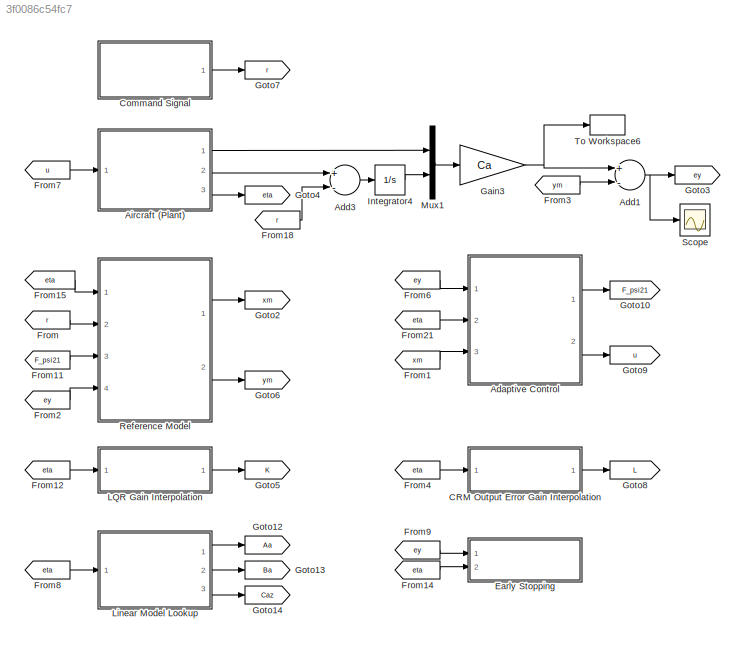
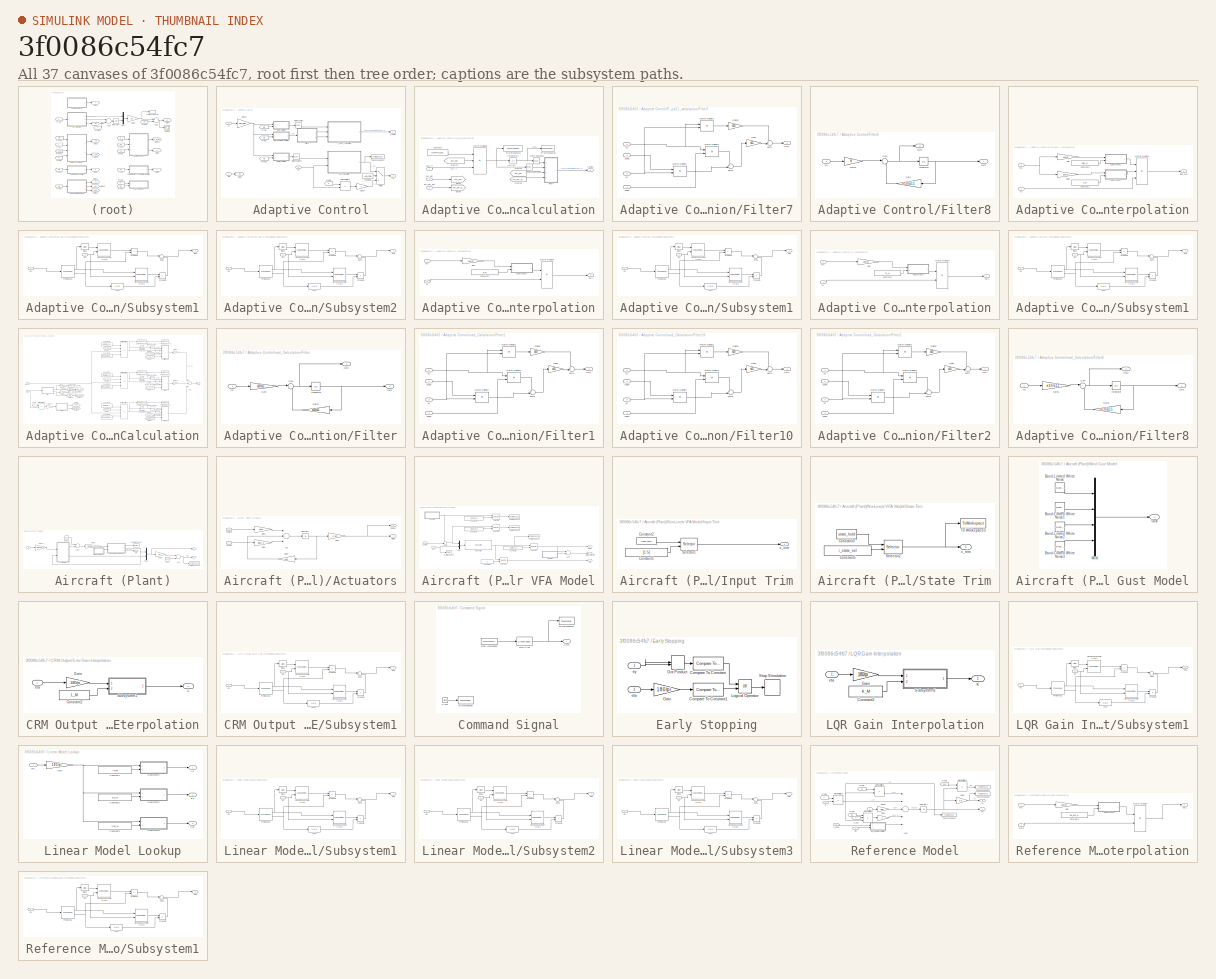
[diagram: thumbnail index - all 37 canvases of the model, root first then tree order]
MODEL slx_3f0086c54fc7
KIND model
CONFIG AbsTol = auto
CONFIG EnableMultiTasking = off
CONFIG FixedStep = 0.001
CONFIG MaxStep = auto
CONFIG MinStep = auto
CONFIG RelTol = 1e-3
CONFIG SampleTimeConstraint = Unconstrained
CONFIG Solver = ode23tb
CONFIG SolverName = ode23tb
CONFIG StartTime = 0.0
CONFIG StopTime = tsim
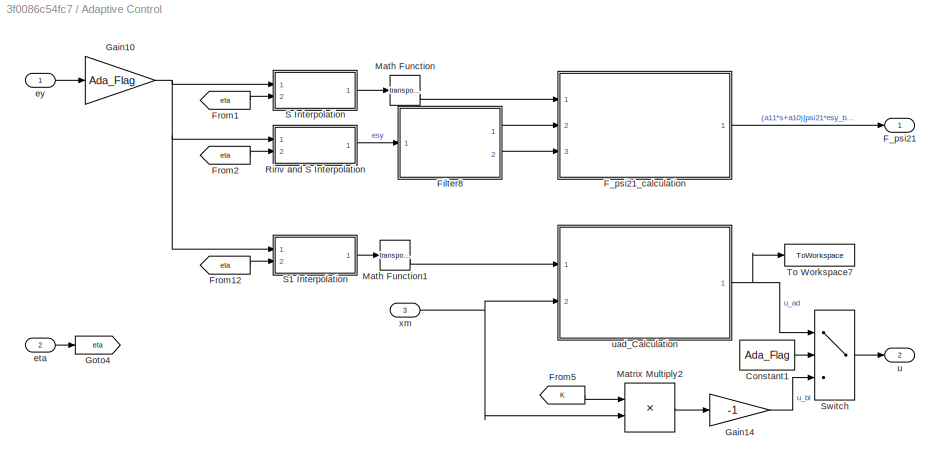
BLOCK [SubSystem] Adaptive Control
  Ports = [3, 2]
  RequestExecContextInheritance = off
  Variant = off
BLOCK [Constant] Adaptive Control/Constant1
  Value = Ada_Flag
  VectorParams1D = off
BLOCK [Outport] Adaptive Control/F_psi21
  IconDisplay = Port number
BLOCK [SubSystem] Adaptive Control/F_psi21_calculation
  Ports = [3, 1]
  RequestExecContextInheritance = off
  Variant = off
BLOCK [Inport] Adaptive Control/F_psi21_calculation/(Sey)^T
  IconDisplay = Port number
BLOCK [Constant] Adaptive Control/F_psi21_calculation/Constant7
  Value = Gamma_p21
  VectorParams1D = off
BLOCK [Outport] Adaptive Control/F_psi21_calculation/F_psi21
  IconDisplay = Port number
BLOCK [SubSystem] Adaptive Control/F_psi21_calculation/Filter7
  Ports = [4, 1]
  RequestExecContextInheritance = off
  Variant = off
BLOCK [Gain] Adaptive Control/F_psi21_calculation/Filter7/Gain1
  Gain = a11
  OutDataTypeStr = Inherit: Inherit via internal rule
  ParamDataTypeStr = Inherit: Inherit via internal rule
  SaturateOnIntegerOverflow = off
BLOCK [Gain] Adaptive Control/F_psi21_calculation/Filter7/Gain25
  Gain = a10
  OutDataTypeStr = Inherit: Inherit via internal rule
  ParamDataTypeStr = Inherit: Inherit via internal rule
  SaturateOnIntegerOverflow = off
BLOCK [Product] Adaptive Control/F_psi21_calculation/Filter7/Matrix Multiply1
  InputSameDT = off
  Multiplication = Matrix(*)
  OutDataTypeStr = Inherit: Inherit via internal rule
  Ports = [2, 1]
  RndMeth = Floor
  SaturateOnIntegerOverflow = off
BLOCK [Product] Adaptive Control/F_psi21_calculation/Filter7/Matrix Multiply2
  InputSameDT = off
  Multiplication = Matrix(*)
  OutDataTypeStr = Inherit: Inherit via internal rule
  Ports = [2, 1]
  RndMeth = Floor
  SaturateOnIntegerOverflow = off
BLOCK [Product] Adaptive Control/F_psi21_calculation/Filter7/Matrix Multiply3
  InputSameDT = off
  Multiplication = Matrix(*)
  OutDataTypeStr = Inherit: Inherit via internal rule
  Ports = [2, 1]
  RndMeth = Floor
  SaturateOnIntegerOverflow = off
BLOCK [Outport] Adaptive Control/F_psi21_calculation/Filter7/Out1
  IconDisplay = Port number
BLOCK [Sum] Adaptive Control/F_psi21_calculation/Filter7/Sum1
  IconShape = round
  InputSameDT = off
  Inputs = ++|
  OutDataTypeStr = Inherit: Inherit via internal rule
  Ports = [2, 1]
  SaturateOnIntegerOverflow = off
BLOCK [Sum] Adaptive Control/F_psi21_calculation/Filter7/Sum6
  IconShape = round
  InputSameDT = off
  Inputs = ++|
  OutDataTypeStr = Inherit: Inherit via internal rule
  Ports = [2, 1]
  SaturateOnIntegerOverflow = off
BLOCK [Inport] Adaptive Control/F_psi21_calculation/Filter7/u1
  IconDisplay = Port number
BLOCK [Inport] Adaptive Control/F_psi21_calculation/Filter7/u1dot
  IconDisplay = Port number
  Port = 2
BLOCK [Inport] Adaptive Control/F_psi21_calculation/Filter7/u2
  IconDisplay = Port number
  Port = 3
BLOCK [Inport] Adaptive Control/F_psi21_calculation/Filter7/u2dot
  IconDisplay = Port number
  Port = 4
BLOCK [From] Adaptive Control/F_psi21_calculation/From23
  GotoTag = esy_bar
BLOCK [From] Adaptive Control/F_psi21_calculation/From24
  GotoTag = esy_bar
BLOCK [From] Adaptive Control/F_psi21_calculation/From25
  GotoTag = esy_bar_dot
BLOCK [Goto] Adaptive Control/F_psi21_calculation/Goto4
  GotoTag = esy_bar
BLOCK [Goto] Adaptive Control/F_psi21_calculation/Goto5
  GotoTag = esy_bar_dot
BLOCK [Integrator] Adaptive Control/F_psi21_calculation/Integrator2
  InitialCondition = psi21_0
  Ports = [1, 1]
BLOCK [Math] Adaptive Control/F_psi21_calculation/Math Function5
  Operator = transpose
  Ports = [1, 1]
BLOCK [Math] Adaptive Control/F_psi21_calculation/Math Function6
  Operator = transpose
  Ports = [1, 1]
BLOCK [Product] Adaptive Control/F_psi21_calculation/Matrix Multiply6
  InputSameDT = off
  Inputs = 3
  Multiplication = Matrix(*)
  OutDataTypeStr = Inherit: Inherit via internal rule
  Ports = [3, 1]
  RndMeth = Floor
  SaturateOnIntegerOverflow = off
BLOCK [ToWorkspace] Adaptive Control/F_psi21_calculation/To Workspace15
  Decimation = data_deci
  MaxDataPoints = inf
  Ports = [1]
  SampleTime = -1
  VariableName = psi21_ada
BLOCK [ToWorkspace] Adaptive Control/F_psi21_calculation/To Workspace16
  Decimation = data_deci
  MaxDataPoints = inf
  Ports = [1]
  SampleTime = -1
  VariableName = psi21_ada_dot
BLOCK [Inport] Adaptive Control/F_psi21_calculation/esy_bar
  IconDisplay = Port number
  Port = 2
BLOCK [Inport] Adaptive Control/F_psi21_calculation/esy_bar_dot
  IconDisplay = Port number
  Port = 3
BLOCK [SubSystem] Adaptive Control/Filter8
  Ports = [1, 2]
  RequestExecContextInheritance = off
  Variant = off
BLOCK [Gain] Adaptive Control/Filter8/Gain
  Gain = a10/a11
  OutDataTypeStr = Inherit: Inherit via internal rule
  ParamDataTypeStr = Inherit: Inherit via internal rule
  SaturateOnIntegerOverflow = off
BLOCK [Gain] Adaptive Control/Filter8/Gain1
  OutDataTypeStr = Inherit: Inherit via internal rule
  ParamDataTypeStr = Inherit: Inherit via internal rule
  SaturateOnIntegerOverflow = off
BLOCK [Inport] Adaptive Control/Filter8/In1
  IconDisplay = Port number
BLOCK [Integrator] Adaptive Control/Filter8/Integrator
  Ports = [1, 1]
BLOCK [Outport] Adaptive Control/Filter8/Out1
  IconDisplay = Port number
BLOCK [Outport] Adaptive Control/Filter8/Out2
  IconDisplay = Port number
  Port = 2
BLOCK [Sum] Adaptive Control/Filter8/Sum
  IconShape = round
  InputSameDT = off
  Inputs = |+-
  OutDataTypeStr = Inherit: Inherit via internal rule
  Ports = [2, 1]
  SaturateOnIntegerOverflow = off
BLOCK [From] Adaptive Control/From1
  GotoTag = eta
BLOCK [From] Adaptive Control/From12
  GotoTag = eta
BLOCK [From] Adaptive Control/From2
  GotoTag = eta
BLOCK [From] Adaptive Control/From5
  GotoTag = K
  TagVisibility = global
BLOCK [Gain] Adaptive Control/Gain10
  Gain = Ada_Flag
  OutDataTypeStr = Inherit: Inherit via internal rule
  ParamDataTypeStr = Inherit: Inherit via internal rule
  SaturateOnIntegerOverflow = off
BLOCK [Gain] Adaptive Control/Gain14
  Gain = -1
  OutDataTypeStr = Inherit: Inherit via internal rule
  ParamDataTypeStr = Inherit: Inherit via internal rule
  SaturateOnIntegerOverflow = off
BLOCK [Goto] Adaptive Control/Goto4
  GotoTag = eta
BLOCK [Math] Adaptive Control/Math Function
  Operator = transpose
  Ports = [1, 1]
BLOCK [Math] Adaptive Control/Math Function1
  Operator = transpose
  Ports = [1, 1]
BLOCK [Product] Adaptive Control/Matrix Multiply2
  InputSameDT = off
  Multiplication = Matrix(*)
  OutDataTypeStr = Inherit: Inherit via internal rule
  Ports = [2, 1]
  RndMeth = Floor
  SaturateOnIntegerOverflow = off
BLOCK [SubSystem] Adaptive Control/Rinv and S Interpolation
  Ports = [2, 1]
  RequestExecContextInheritance = off
  Variant = off
BLOCK [Constant] Adaptive Control/Rinv and S Interpolation/Constant1
  Value = S_M
BLOCK [Constant] Adaptive Control/Rinv and S Interpolation/Constant2
  Value = Rinv_M
BLOCK [Gain] Adaptive Control/Rinv and S Interpolation/Gain
  Gain = 180/pi
  OutDataTypeStr = Inherit: Inherit via internal rule
  ParamDataTypeStr = Inherit: Inherit via internal rule
  SaturateOnIntegerOverflow = off
BLOCK [Gain] Adaptive Control/Rinv and S Interpolation/Gain1
  Gain = 180/pi
  OutDataTypeStr = Inherit: Inherit via internal rule
  ParamDataTypeStr = Inherit: Inherit via internal rule
  SaturateOnIntegerOverflow = off
BLOCK [Product] Adaptive Control/Rinv and S Interpolation/Matrix Multiply6
  InputSameDT = off
  Inputs = 3
  Multiplication = Matrix(*)
  OutDataTypeStr = Inherit: Inherit via internal rule
  Ports = [3, 1]
  RndMeth = Floor
  SaturateOnIntegerOverflow = off
BLOCK [Outport] Adaptive Control/Rinv and S Interpolation/Rinv*S*ey
  IconDisplay = Port number
BLOCK [SubSystem] Adaptive Control/Rinv and S Interpolation/Subsystem1
  Ports = [2, 1]
  RequestExecContextInheritance = off
  Variant = off
BLOCK [Bias] Adaptive Control/Rinv and S Interpolation/Subsystem1/Bias1
  Bias = 1
  SaturateOnIntegerOverflow = off
BLOCK [LookupNDDirect] Adaptive Control/Rinv and S Interpolation/Subsystem1/Direct Lookup Table (n-D)2
  InputsSelectThisObjectFromTable = 2-D Matrix
  NumberOfTableDimensions = 3
  Ports = [2, 1]
  Table = ahold
  TableIsInput = on
BLOCK [LookupNDDirect] Adaptive Control/Rinv and S Interpolation/Subsystem1/Direct Lookup Table (n-D)3
  InputsSelectThisObjectFromTable = 2-D Matrix
  NumberOfTableDimensions = 3
  Ports = [2, 1]
  Table = ahold
  TableIsInput = on
BLOCK [Fcn] Adaptive Control/Rinv and S Interpolation/Subsystem1/Fcn1
  Expr = 1-u(1)
BLOCK [Inport] Adaptive Control/Rinv and S Interpolation/Subsystem1/In1
  IconDisplay = Port number
BLOCK [Inport] Adaptive Control/Rinv and S Interpolation/Subsystem1/In2
  IconDisplay = Port number
  Port = 2
BLOCK [Outport] Adaptive Control/Rinv and S Interpolation/Subsystem1/Out1
  IconDisplay = Port number
BLOCK [PreLookup] Adaptive Control/Rinv and S Interpolation/Subsystem1/Prelookup1
  BreakpointsData = etasweep
  ExtrapMethod = Linear
  InputPortMap = u0
  Ports = [1, 2]
BLOCK [Product] Adaptive Control/Rinv and S Interpolation/Subsystem1/Product2
  InputSameDT = off
  OutDataTypeStr = Inherit: Inherit via internal rule
  Ports = [2, 1]
  SaturateOnIntegerOverflow = off
BLOCK [Product] Adaptive Control/Rinv and S Interpolation/Subsystem1/Product3
  InputSameDT = off
  OutDataTypeStr = Inherit: Inherit via internal rule
  Ports = [2, 1]
  SaturateOnIntegerOverflow = off
BLOCK [Sum] Adaptive Control/Rinv and S Interpolation/Subsystem1/Sum1
  IconShape = round
  InputSameDT = off
  Inputs = |++
  OutDataTypeStr = Inherit: Inherit via internal rule
  Ports = [2, 1]
  SaturateOnIntegerOverflow = off
BLOCK [SubSystem] Adaptive Control/Rinv and S Interpolation/Subsystem2
  Ports = [2, 1]
  RequestExecContextInheritance = off
  Variant = off
BLOCK [Bias] Adaptive Control/Rinv and S Interpolation/Subsystem2/Bias1
  Bias = 1
  SaturateOnIntegerOverflow = off
BLOCK [LookupNDDirect] Adaptive Control/Rinv and S Interpolation/Subsystem2/Direct Lookup Table (n-D)2
  InputsSelectThisObjectFromTable = 2-D Matrix
  NumberOfTableDimensions = 3
  Ports = [2, 1]
  Table = ahold
  TableIsInput = on
BLOCK [LookupNDDirect] Adaptive Control/Rinv and S Interpolation/Subsystem2/Direct Lookup Table (n-D)3
  InputsSelectThisObjectFromTable = 2-D Matrix
  NumberOfTableDimensions = 3
  Ports = [2, 1]
  Table = ahold
  TableIsInput = on
BLOCK [Fcn] Adaptive Control/Rinv and S Interpolation/Subsystem2/Fcn1
  Expr = 1-u(1)
BLOCK [Inport] Adaptive Control/Rinv and S Interpolation/Subsystem2/In1
  IconDisplay = Port number
BLOCK [Inport] Adaptive Control/Rinv and S Interpolation/Subsystem2/In2
  IconDisplay = Port number
  Port = 2
BLOCK [Outport] Adaptive Control/Rinv and S Interpolation/Subsystem2/Out1
  IconDisplay = Port number
BLOCK [PreLookup] Adaptive Control/Rinv and S Interpolation/Subsystem2/Prelookup1
  BreakpointsData = etasweep
  ExtrapMethod = Linear
  InputPortMap = u0
  Ports = [1, 2]
BLOCK [Product] Adaptive Control/Rinv and S Interpolation/Subsystem2/Product2
  InputSameDT = off
  OutDataTypeStr = Inherit: Inherit via internal rule
  Ports = [2, 1]
  SaturateOnIntegerOverflow = off
BLOCK [Product] Adaptive Control/Rinv and S Interpolation/Subsystem2/Product3
  InputSameDT = off
  OutDataTypeStr = Inherit: Inherit via internal rule
  Ports = [2, 1]
  SaturateOnIntegerOverflow = off
BLOCK [Sum] Adaptive Control/Rinv and S Interpolation/Subsystem2/Sum1
  IconShape = round
  InputSameDT = off
  Inputs = |++
  OutDataTypeStr = Inherit: Inherit via internal rule
  Ports = [2, 1]
  SaturateOnIntegerOverflow = off
BLOCK [Inport] Adaptive Control/Rinv and S Interpolation/eta
  IconDisplay = Port number
  Port = 2
BLOCK [Inport] Adaptive Control/Rinv and S Interpolation/ey
  IconDisplay = Port number
BLOCK [SubSystem] Adaptive Control/S Interpolation
  Ports = [2, 1]
  RequestExecContextInheritance = off
  Variant = off
BLOCK [Constant] Adaptive Control/S Interpolation/Constant2
  Value = S_M
BLOCK [Gain] Adaptive Control/S Interpolation/Gain
  Gain = 180/pi
  OutDataTypeStr = Inherit: Inherit via internal rule
  ParamDataTypeStr = Inherit: Inherit via internal rule
  SaturateOnIntegerOverflow = off
BLOCK [Product] Adaptive Control/S Interpolation/Matrix Multiply6
  InputSameDT = off
  Multiplication = Matrix(*)
  OutDataTypeStr = Inherit: Inherit via internal rule
  Ports = [2, 1]
  RndMeth = Floor
  SaturateOnIntegerOverflow = off
BLOCK [Outport] Adaptive Control/S Interpolation/Out1
  IconDisplay = Port number
BLOCK [SubSystem] Adaptive Control/S Interpolation/Subsystem1
  Ports = [2, 1]
  RequestExecContextInheritance = off
  Variant = off
BLOCK [Bias] Adaptive Control/S Interpolation/Subsystem1/Bias1
  Bias = 1
  SaturateOnIntegerOverflow = off
BLOCK [LookupNDDirect] Adaptive Control/S Interpolation/Subsystem1/Direct Lookup Table (n-D)2
  InputsSelectThisObjectFromTable = 2-D Matrix
  NumberOfTableDimensions = 3
  Ports = [2, 1]
  Table = ahold
  TableIsInput = on
BLOCK [LookupNDDirect] Adaptive Control/S Interpolation/Subsystem1/Direct Lookup Table (n-D)3
  InputsSelectThisObjectFromTable = 2-D Matrix
  NumberOfTableDimensions = 3
  Ports = [2, 1]
  Table = ahold
  TableIsInput = on
BLOCK [Fcn] Adaptive Control/S Interpolation/Subsystem1/Fcn1
  Expr = 1-u(1)
BLOCK [Inport] Adaptive Control/S Interpolation/Subsystem1/In1
  IconDisplay = Port number
BLOCK [Inport] Adaptive Control/S Interpolation/Subsystem1/In2
  IconDisplay = Port number
  Port = 2
BLOCK [Outport] Adaptive Control/S Interpolation/Subsystem1/Out1
  IconDisplay = Port number
BLOCK [PreLookup] Adaptive Control/S Interpolation/Subsystem1/Prelookup1
  BreakpointsData = etasweep
  ExtrapMethod = Linear
  InputPortMap = u0
  Ports = [1, 2]
BLOCK [Product] Adaptive Control/S Interpolation/Subsystem1/Product2
  InputSameDT = off
  OutDataTypeStr = Inherit: Inherit via internal rule
  Ports = [2, 1]
  SaturateOnIntegerOverflow = off
BLOCK [Product] Adaptive Control/S Interpolation/Subsystem1/Product3
  InputSameDT = off
  OutDataTypeStr = Inherit: Inherit via internal rule
  Ports = [2, 1]
  SaturateOnIntegerOverflow = off
BLOCK [Sum] Adaptive Control/S Interpolation/Subsystem1/Sum1
  IconShape = round
  InputSameDT = off
  Inputs = |++
  OutDataTypeStr = Inherit: Inherit via internal rule
  Ports = [2, 1]
  SaturateOnIntegerOverflow = off
BLOCK [Inport] Adaptive Control/S Interpolation/eta
  IconDisplay = Port number
  Port = 2
BLOCK [Inport] Adaptive Control/S Interpolation/ey
  IconDisplay = Port number
BLOCK [SubSystem] Adaptive Control/S1 Interpolation
  Ports = [2, 1]
  RequestExecContextInheritance = off
  Variant = off
BLOCK [Constant] Adaptive Control/S1 Interpolation/Constant2
  Value = S1_M
BLOCK [Gain] Adaptive Control/S1 Interpolation/Gain
  Gain = 180/pi
  OutDataTypeStr = Inherit: Inherit via internal rule
  ParamDataTypeStr = Inherit: Inherit via internal rule
  SaturateOnIntegerOverflow = off
BLOCK [Product] Adaptive Control/S1 Interpolation/Matrix Multiply6
  InputSameDT = off
  Multiplication = Matrix(*)
  OutDataTypeStr = Inherit: Inherit via internal rule
  Ports = [2, 1]
  RndMeth = Floor
  SaturateOnIntegerOverflow = off
BLOCK [Outport] Adaptive Control/S1 Interpolation/Out1
  IconDisplay = Port number
BLOCK [SubSystem] Adaptive Control/S1 Interpolation/Subsystem1
  Ports = [2, 1]
  RequestExecContextInheritance = off
  Variant = off
BLOCK [Bias] Adaptive Control/S1 Interpolation/Subsystem1/Bias1
  Bias = 1
  SaturateOnIntegerOverflow = off
BLOCK [LookupNDDirect] Adaptive Control/S1 Interpolation/Subsystem1/Direct Lookup Table (n-D)2
  InputsSelectThisObjectFromTable = 2-D Matrix
  NumberOfTableDimensions = 3
  Ports = [2, 1]
  Table = ahold
  TableIsInput = on
BLOCK [LookupNDDirect] Adaptive Control/S1 Interpolation/Subsystem1/Direct Lookup Table (n-D)3
  InputsSelectThisObjectFromTable = 2-D Matrix
  NumberOfTableDimensions = 3
  Ports = [2, 1]
  Table = ahold
  TableIsInput = on
BLOCK [Fcn] Adaptive Control/S1 Interpolation/Subsystem1/Fcn1
  Expr = 1-u(1)
BLOCK [Inport] Adaptive Control/S1 Interpolation/Subsystem1/In1
  IconDisplay = Port number
BLOCK [Inport] Adaptive Control/S1 Interpolation/Subsystem1/In2
  IconDisplay = Port number
  Port = 2
BLOCK [Outport] Adaptive Control/S1 Interpolation/Subsystem1/Out1
  IconDisplay = Port number
BLOCK [PreLookup] Adaptive Control/S1 Interpolation/Subsystem1/Prelookup1
  BreakpointsData = etasweep
  ExtrapMethod = Linear
  InputPortMap = u0
  Ports = [1, 2]
BLOCK [Product] Adaptive Control/S1 Interpolation/Subsystem1/Product2
  InputSameDT = off
  OutDataTypeStr = Inherit: Inherit via internal rule
  Ports = [2, 1]
  SaturateOnIntegerOverflow = off
BLOCK [Product] Adaptive Control/S1 Interpolation/Subsystem1/Product3
  InputSameDT = off
  OutDataTypeStr = Inherit: Inherit via internal rule
  Ports = [2, 1]
  SaturateOnIntegerOverflow = off
BLOCK [Sum] Adaptive Control/S1 Interpolation/Subsystem1/Sum1
  IconShape = round
  InputSameDT = off
  Inputs = |++
  OutDataTypeStr = Inherit: Inherit via internal rule
  Ports = [2, 1]
  SaturateOnIntegerOverflow = off
BLOCK [Inport] Adaptive Control/S1 Interpolation/eta
  IconDisplay = Port number
  Port = 2
BLOCK [Inport] Adaptive Control/S1 Interpolation/ey
  IconDisplay = Port number
BLOCK [Switch] Adaptive Control/Switch
  Criteria = u2 ~= 0
  InputSameDT = off
  SaturateOnIntegerOverflow = off
BLOCK [ToWorkspace] Adaptive Control/To Workspace7
  Decimation = data_deci
  MaxDataPoints = inf
  Ports = [1]
  SampleTime = -1
  VariableName = u_ad
BLOCK [Inport] Adaptive Control/eta
  IconDisplay = Port number
  Port = 2
BLOCK [Inport] Adaptive Control/ey
  IconDisplay = Port number
BLOCK [Outport] Adaptive Control/u
  IconDisplay = Port number
  Port = 2
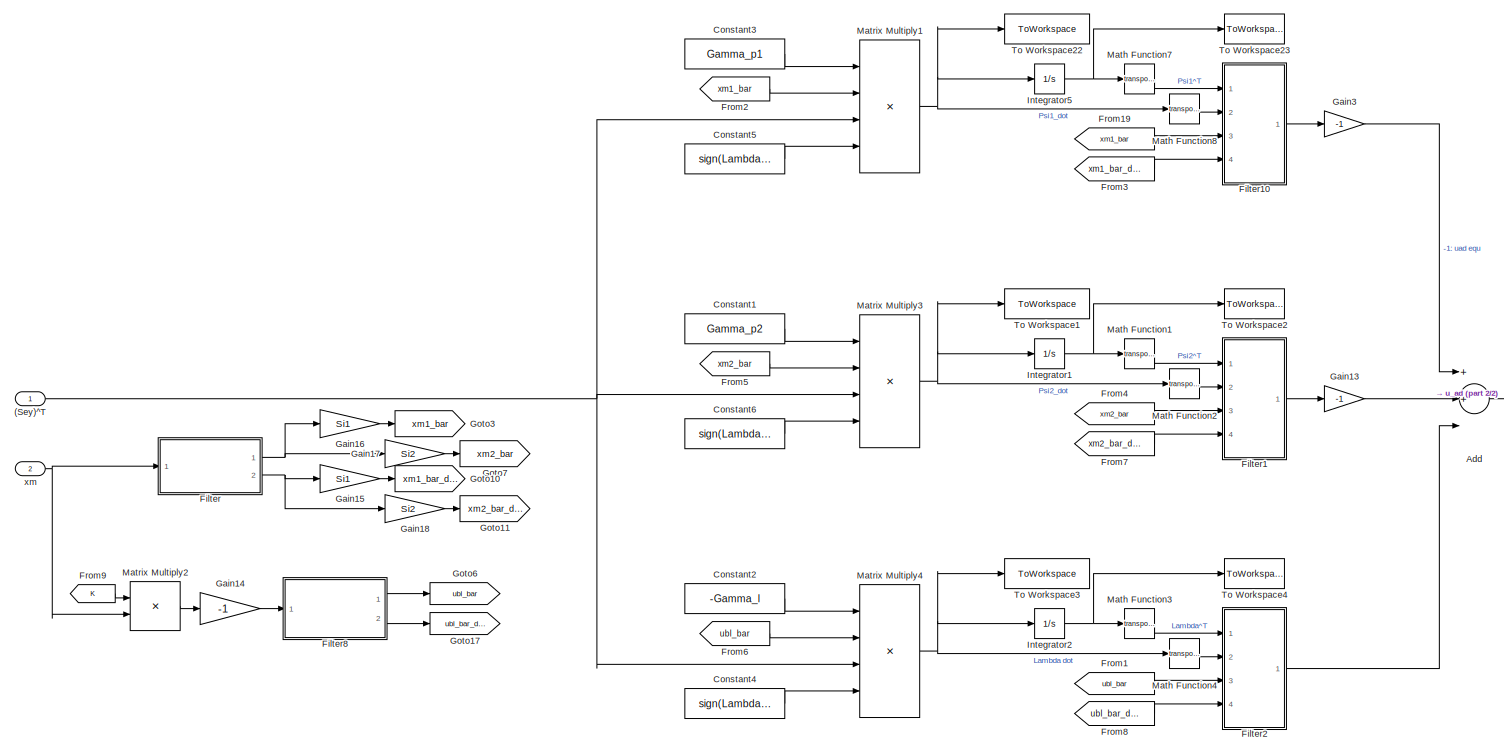
[diagram: Adaptive Control/uad_Calculation - part 1/2, most of the canvas]
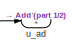
[diagram: Adaptive Control/uad_Calculation - part 2/2, middle right region]
BLOCK [SubSystem] Adaptive Control/uad_Calculation
  Ports = [2, 1]
  RequestExecContextInheritance = off
  Variant = off
BLOCK [Inport] Adaptive Control/uad_Calculation/(Sey)^T
  IconDisplay = Port number
BLOCK [Sum] Adaptive Control/uad_Calculation/Add
  InputSameDT = off
  Inputs = 3
  OutDataTypeStr = Inherit: Inherit via internal rule
  Ports = [3, 1]
  SaturateOnIntegerOverflow = off
BLOCK [Constant] Adaptive Control/uad_Calculation/Constant1
  Value = Gamma_p2
  VectorParams1D = off
BLOCK [Constant] Adaptive Control/uad_Calculation/Constant2
  Value = -Gamma_l
  VectorParams1D = off
BLOCK [Constant] Adaptive Control/uad_Calculation/Constant3
  Value = Gamma_p1
  VectorParams1D = off
BLOCK [Constant] Adaptive Control/uad_Calculation/Constant4
  Value = sign(Lambda_s)
  VectorParams1D = off
BLOCK [Constant] Adaptive Control/uad_Calculation/Constant5
  Value = sign(Lambda_s)
  VectorParams1D = off
BLOCK [Constant] Adaptive Control/uad_Calculation/Constant6
  Value = sign(Lambda_s)
  VectorParams1D = off
BLOCK [SubSystem] Adaptive Control/uad_Calculation/Filter
  Ports = [1, 2]
  RequestExecContextInheritance = off
  Variant = off
BLOCK [Gain] Adaptive Control/uad_Calculation/Filter/Gain
  Gain = a10/a11
  OutDataTypeStr = Inherit: Inherit via internal rule
  ParamDataTypeStr = Inherit: Inherit via internal rule
  SaturateOnIntegerOverflow = off
BLOCK [Gain] Adaptive Control/uad_Calculation/Filter/Gain1
  Gain = a10/a11
  OutDataTypeStr = Inherit: Inherit via internal rule
  ParamDataTypeStr = Inherit: Inherit via internal rule
  SaturateOnIntegerOverflow = off
BLOCK [Inport] Adaptive Control/uad_Calculation/Filter/In1
  IconDisplay = Port number
BLOCK [Integrator] Adaptive Control/uad_Calculation/Filter/Integrator
  Ports = [1, 1]
BLOCK [Outport] Adaptive Control/uad_Calculation/Filter/Out1
  IconDisplay = Port number
BLOCK [Outport] Adaptive Control/uad_Calculation/Filter/Out2
  IconDisplay = Port number
  Port = 2
BLOCK [Sum] Adaptive Control/uad_Calculation/Filter/Sum
  IconShape = round
  InputSameDT = off
  Inputs = |+-
  OutDataTypeStr = Inherit: Inherit via internal rule
  Ports = [2, 1]
  SaturateOnIntegerOverflow = off
BLOCK [SubSystem] Adaptive Control/uad_Calculation/Filter1
  Ports = [4, 1]
  RequestExecContextInheritance = off
  Variant = off
BLOCK [Gain] Adaptive Control/uad_Calculation/Filter1/Gain1
  Gain = a11
  OutDataTypeStr = Inherit: Inherit via internal rule
  ParamDataTypeStr = Inherit: Inherit via internal rule
  SaturateOnIntegerOverflow = off
BLOCK [Gain] Adaptive Control/uad_Calculation/Filter1/Gain25
  Gain = a10
  OutDataTypeStr = Inherit: Inherit via internal rule
  ParamDataTypeStr = Inherit: Inherit via internal rule
  SaturateOnIntegerOverflow = off
BLOCK [Product] Adaptive Control/uad_Calculation/Filter1/Matrix Multiply1
  InputSameDT = off
  Multiplication = Matrix(*)
  OutDataTypeStr = Inherit: Inherit via internal rule
  Ports = [2, 1]
  RndMeth = Floor
  SaturateOnIntegerOverflow = off
BLOCK [Product] Adaptive Control/uad_Calculation/Filter1/Matrix Multiply2
  InputSameDT = off
  Multiplication = Matrix(*)
  OutDataTypeStr = Inherit: Inherit via internal rule
  Ports = [2, 1]
  RndMeth = Floor
  SaturateOnIntegerOverflow = off
BLOCK [Product] Adaptive Control/uad_Calculation/Filter1/Matrix Multiply3
  InputSameDT = off
  Multiplication = Matrix(*)
  OutDataTypeStr = Inherit: Inherit via internal rule
  Ports = [2, 1]
  RndMeth = Floor
  SaturateOnIntegerOverflow = off
BLOCK [Outport] Adaptive Control/uad_Calculation/Filter1/Out1
  IconDisplay = Port number
BLOCK [Sum] Adaptive Control/uad_Calculation/Filter1/Sum1
  IconShape = round
  InputSameDT = off
  Inputs = ++|
  OutDataTypeStr = Inherit: Inherit via internal rule
  Ports = [2, 1]
  SaturateOnIntegerOverflow = off
BLOCK [Sum] Adaptive Control/uad_Calculation/Filter1/Sum6
  IconShape = round
  InputSameDT = off
  Inputs = ++|
  OutDataTypeStr = Inherit: Inherit via internal rule
  Ports = [2, 1]
  SaturateOnIntegerOverflow = off
BLOCK [Inport] Adaptive Control/uad_Calculation/Filter1/u1
  IconDisplay = Port number
BLOCK [Inport] Adaptive Control/uad_Calculation/Filter1/u1dot
  IconDisplay = Port number
  Port = 2
BLOCK [Inport] Adaptive Control/uad_Calculation/Filter1/u2
  IconDisplay = Port number
  Port = 3
BLOCK [Inport] Adaptive Control/uad_Calculation/Filter1/u2dot
  IconDisplay = Port number
  Port = 4
BLOCK [SubSystem] Adaptive Control/uad_Calculation/Filter10
  Ports = [4, 1]
  RequestExecContextInheritance = off
  Variant = off
BLOCK [Gain] Adaptive Control/uad_Calculation/Filter10/Gain1
  Gain = a11
  OutDataTypeStr = Inherit: Inherit via internal rule
  ParamDataTypeStr = Inherit: Inherit via internal rule
  SaturateOnIntegerOverflow = off
BLOCK [Gain] Adaptive Control/uad_Calculation/Filter10/Gain25
  Gain = a10
  OutDataTypeStr = Inherit: Inherit via internal rule
  ParamDataTypeStr = Inherit: Inherit via internal rule
  SaturateOnIntegerOverflow = off
BLOCK [Product] Adaptive Control/uad_Calculation/Filter10/Matrix Multiply1
  InputSameDT = off
  Multiplication = Matrix(*)
  OutDataTypeStr = Inherit: Inherit via internal rule
  Ports = [2, 1]
  RndMeth = Floor
  SaturateOnIntegerOverflow = off
BLOCK [Product] Adaptive Control/uad_Calculation/Filter10/Matrix Multiply2
  InputSameDT = off
  Multiplication = Matrix(*)
  OutDataTypeStr = Inherit: Inherit via internal rule
  Ports = [2, 1]
  RndMeth = Floor
  SaturateOnIntegerOverflow = off
BLOCK [Product] Adaptive Control/uad_Calculation/Filter10/Matrix Multiply3
  InputSameDT = off
  Multiplication = Matrix(*)
  OutDataTypeStr = Inherit: Inherit via internal rule
  Ports = [2, 1]
  RndMeth = Floor
  SaturateOnIntegerOverflow = off
BLOCK [Outport] Adaptive Control/uad_Calculation/Filter10/Out1
  IconDisplay = Port number
BLOCK [Sum] Adaptive Control/uad_Calculation/Filter10/Sum1
  IconShape = round
  InputSameDT = off
  Inputs = ++|
  OutDataTypeStr = Inherit: Inherit via internal rule
  Ports = [2, 1]
  SaturateOnIntegerOverflow = off
BLOCK [Sum] Adaptive Control/uad_Calculation/Filter10/Sum6
  IconShape = round
  InputSameDT = off
  Inputs = ++|
  OutDataTypeStr = Inherit: Inherit via internal rule
  Ports = [2, 1]
  SaturateOnIntegerOverflow = off
BLOCK [Inport] Adaptive Control/uad_Calculation/Filter10/u1
  IconDisplay = Port number
BLOCK [Inport] Adaptive Control/uad_Calculation/Filter10/u1dot
  IconDisplay = Port number
  Port = 2
BLOCK [Inport] Adaptive Control/uad_Calculation/Filter10/u2
  IconDisplay = Port number
  Port = 3
BLOCK [Inport] Adaptive Control/uad_Calculation/Filter10/u2dot
  IconDisplay = Port number
  Port = 4
BLOCK [SubSystem] Adaptive Control/uad_Calculation/Filter2
  Ports = [4, 1]
  RequestExecContextInheritance = off
  Variant = off
BLOCK [Gain] Adaptive Control/uad_Calculation/Filter2/Gain1
  Gain = a11
  OutDataTypeStr = Inherit: Inherit via internal rule
  ParamDataTypeStr = Inherit: Inherit via internal rule
  SaturateOnIntegerOverflow = off
BLOCK [Gain] Adaptive Control/uad_Calculation/Filter2/Gain25
  Gain = a10
  OutDataTypeStr = Inherit: Inherit via internal rule
  ParamDataTypeStr = Inherit: Inherit via internal rule
  SaturateOnIntegerOverflow = off
BLOCK [Product] Adaptive Control/uad_Calculation/Filter2/Matrix Multiply1
  InputSameDT = off
  Multiplication = Matrix(*)
  OutDataTypeStr = Inherit: Inherit via internal rule
  Ports = [2, 1]
  RndMeth = Floor
  SaturateOnIntegerOverflow = off
BLOCK [Product] Adaptive Control/uad_Calculation/Filter2/Matrix Multiply2
  InputSameDT = off
  Multiplication = Matrix(*)
  OutDataTypeStr = Inherit: Inherit via internal rule
  Ports = [2, 1]
  RndMeth = Floor
  SaturateOnIntegerOverflow = off
BLOCK [Product] Adaptive Control/uad_Calculation/Filter2/Matrix Multiply3
  InputSameDT = off
  Multiplication = Matrix(*)
  OutDataTypeStr = Inherit: Inherit via internal rule
  Ports = [2, 1]
  RndMeth = Floor
  SaturateOnIntegerOverflow = off
BLOCK [Outport] Adaptive Control/uad_Calculation/Filter2/Out1
  IconDisplay = Port number
BLOCK [Sum] Adaptive Control/uad_Calculation/Filter2/Sum1
  IconShape = round
  InputSameDT = off
  Inputs = ++|
  OutDataTypeStr = Inherit: Inherit via internal rule
  Ports = [2, 1]
  SaturateOnIntegerOverflow = off
BLOCK [Sum] Adaptive Control/uad_Calculation/Filter2/Sum6
  IconShape = round
  InputSameDT = off
  Inputs = ++|
  OutDataTypeStr = Inherit: Inherit via internal rule
  Ports = [2, 1]
  SaturateOnIntegerOverflow = off
BLOCK [Inport] Adaptive Control/uad_Calculation/Filter2/u1
  IconDisplay = Port number
BLOCK [Inport] Adaptive Control/uad_Calculation/Filter2/u1dot
  IconDisplay = Port number
  Port = 2
BLOCK [Inport] Adaptive Control/uad_Calculation/Filter2/u2
  IconDisplay = Port number
  Port = 3
BLOCK [Inport] Adaptive Control/uad_Calculation/Filter2/u2dot
  IconDisplay = Port number
  Port = 4
BLOCK [SubSystem] Adaptive Control/uad_Calculation/Filter8
  Ports = [1, 2]
  RequestExecContextInheritance = off
  Variant = off
BLOCK [Gain] Adaptive Control/uad_Calculation/Filter8/Gain1
  Gain = a10/a11
  OutDataTypeStr = Inherit: Inherit via internal rule
  ParamDataTypeStr = Inherit: Inherit via internal rule
  SaturateOnIntegerOverflow = off
BLOCK [Gain] Adaptive Control/uad_Calculation/Filter8/Gain2
  Gain = a10/a11
  OutDataTypeStr = Inherit: Inherit via internal rule
  ParamDataTypeStr = Inherit: Inherit via internal rule
  SaturateOnIntegerOverflow = off
BLOCK [Inport] Adaptive Control/uad_Calculation/Filter8/In1
  IconDisplay = Port number
BLOCK [Integrator] Adaptive Control/uad_Calculation/Filter8/Integrator
  Ports = [1, 1]
BLOCK [Outport] Adaptive Control/uad_Calculation/Filter8/Out1
  IconDisplay = Port number
BLOCK [Outport] Adaptive Control/uad_Calculation/Filter8/Out2
  IconDisplay = Port number
  Port = 2
BLOCK [Sum] Adaptive Control/uad_Calculation/Filter8/Sum
  IconShape = round
  InputSameDT = off
  Inputs = |+-
  OutDataTypeStr = Inherit: Inherit via internal rule
  Ports = [2, 1]
  SaturateOnIntegerOverflow = off
BLOCK [From] Adaptive Control/uad_Calculation/From1
  GotoTag = ubl_bar
BLOCK [From] Adaptive Control/uad_Calculation/From19
  GotoTag = xm1_bar
BLOCK [From] Adaptive Control/uad_Calculation/From2
  GotoTag = xm1_bar
BLOCK [From] Adaptive Control/uad_Calculation/From3
  GotoTag = xm1_bar_dot
BLOCK [From] Adaptive Control/uad_Calculation/From4
  GotoTag = xm2_bar
BLOCK [From] Adaptive Control/uad_Calculation/From5
  GotoTag = xm2_bar
BLOCK [From] Adaptive Control/uad_Calculation/From6
  GotoTag = ubl_bar
BLOCK [From] Adaptive Control/uad_Calculation/From7
  GotoTag = xm2_bar_dot
BLOCK [From] Adaptive Control/uad_Calculation/From8
  GotoTag = ubl_bar_dot
BLOCK [From] Adaptive Control/uad_Calculation/From9
  GotoTag = K
  TagVisibility = global
BLOCK [Gain] Adaptive Control/uad_Calculation/Gain13
  Gain = -1
  OutDataTypeStr = Inherit: Inherit via internal rule
  ParamDataTypeStr = Inherit: Inherit via internal rule
  SaturateOnIntegerOverflow = off
BLOCK [Gain] Adaptive Control/uad_Calculation/Gain14
  Gain = -1
  OutDataTypeStr = Inherit: Inherit via internal rule
  ParamDataTypeStr = Inherit: Inherit via internal rule
  SaturateOnIntegerOverflow = off
BLOCK [Gain] Adaptive Control/uad_Calculation/Gain15
  Gain = Si1
  Multiplication = Matrix(K*u)
  OutDataTypeStr = Inherit: Inherit via internal rule
  ParamDataTypeStr = Inherit: Inherit via internal rule
  SaturateOnIntegerOverflow = off
BLOCK [Gain] Adaptive Control/uad_Calculation/Gain16
  Gain = Si1
  Multiplication = Matrix(K*u)
  OutDataTypeStr = Inherit: Inherit via internal rule
  ParamDataTypeStr = Inherit: Inherit via internal rule
  SaturateOnIntegerOverflow = off
BLOCK [Gain] Adaptive Control/uad_Calculation/Gain17
  Gain = Si2
  Multiplication = Matrix(K*u)
  OutDataTypeStr = Inherit: Inherit via internal rule
  ParamDataTypeStr = Inherit: Inherit via internal rule
  SaturateOnIntegerOverflow = off
BLOCK [Gain] Adaptive Control/uad_Calculation/Gain18
  Gain = Si2
  Multiplication = Matrix(K*u)
  OutDataTypeStr = Inherit: Inherit via internal rule
  ParamDataTypeStr = Inherit: Inherit via internal rule
  SaturateOnIntegerOverflow = off
BLOCK [Gain] Adaptive Control/uad_Calculation/Gain3
  Gain = -1
  OutDataTypeStr = Inherit: Inherit via internal rule
  ParamDataTypeStr = Inherit: Inherit via internal rule
  SaturateOnIntegerOverflow = off
BLOCK [Goto] Adaptive Control/uad_Calculation/Goto10
  GotoTag = xm1_bar_dot
BLOCK [Goto] Adaptive Control/uad_Calculation/Goto11
  GotoTag = xm2_bar_dot
BLOCK [Goto] Adaptive Control/uad_Calculation/Goto17
  GotoTag = ubl_bar_dot
BLOCK [Goto] Adaptive Control/uad_Calculation/Goto3
  GotoTag = xm1_bar
BLOCK [Goto] Adaptive Control/uad_Calculation/Goto6
  GotoTag = ubl_bar
BLOCK [Goto] Adaptive Control/uad_Calculation/Goto7
  GotoTag = xm2_bar
BLOCK [Integrator] Adaptive Control/uad_Calculation/Integrator1
  InitialCondition = psi2_0
  Ports = [1, 1]
BLOCK [Integrator] Adaptive Control/uad_Calculation/Integrator2
  InitialCondition = lambda_0
  Ports = [1, 1]
BLOCK [Integrator] Adaptive Control/uad_Calculation/Integrator5
  InitialCondition = psi1_0
  Ports = [1, 1]
BLOCK [Math] Adaptive Control/uad_Calculation/Math Function1
  Operator = transpose
  Ports = [1, 1]
BLOCK [Math] Adaptive Control/uad_Calculation/Math Function2
  Operator = transpose
  Ports = [1, 1]
BLOCK [Math] Adaptive Control/uad_Calculation/Math Function3
  Operator = transpose
  Ports = [1, 1]
BLOCK [Math] Adaptive Control/uad_Calculation/Math Function4
  Operator = transpose
  Ports = [1, 1]
BLOCK [Math] Adaptive Control/uad_Calculation/Math Function7
  Operator = transpose
  Ports = [1, 1]
BLOCK [Math] Adaptive Control/uad_Calculation/Math Function8
  Operator = transpose
  Ports = [1, 1]
BLOCK [Product] Adaptive Control/uad_Calculation/Matrix Multiply1
  InputSameDT = off
  Inputs = 4
  Multiplication = Matrix(*)
  OutDataTypeStr = Inherit: Inherit via internal rule
  Ports = [4, 1]
  RndMeth = Floor
  SaturateOnIntegerOverflow = off
BLOCK [Product] Adaptive Control/uad_Calculation/Matrix Multiply2
  InputSameDT = off
  Multiplication = Matrix(*)
  OutDataTypeStr = Inherit: Inherit via internal rule
  Ports = [2, 1]
  RndMeth = Floor
  SaturateOnIntegerOverflow = off
BLOCK [Product] Adaptive Control/uad_Calculation/Matrix Multiply3
  InputSameDT = off
  Inputs = 4
  Multiplication = Matrix(*)
  OutDataTypeStr = Inherit: Inherit via internal rule
  Ports = [4, 1]
  RndMeth = Floor
  SaturateOnIntegerOverflow = off
BLOCK [Product] Adaptive Control/uad_Calculation/Matrix Multiply4
  InputSameDT = off
  Inputs = 4
  Multiplication = Matrix(*)
  OutDataTypeStr = Inherit: Inherit via internal rule
  Ports = [4, 1]
  RndMeth = Floor
  SaturateOnIntegerOverflow = off
BLOCK [ToWorkspace] Adaptive Control/uad_Calculation/To Workspace1
  Decimation = data_deci
  MaxDataPoints = inf
  Ports = [1]
  SampleTime = -1
  VariableName = psi2_ada_dot
BLOCK [ToWorkspace] Adaptive Control/uad_Calculation/To Workspace2
  Decimation = data_deci
  MaxDataPoints = inf
  Ports = [1]
  SampleTime = -1
  VariableName = psi2_ada
BLOCK [ToWorkspace] Adaptive Control/uad_Calculation/To Workspace22
  Decimation = data_deci
  MaxDataPoints = inf
  Ports = [1]
  SampleTime = -1
  VariableName = psi1_ada_dot
BLOCK [ToWorkspace] Adaptive Control/uad_Calculation/To Workspace23
  Decimation = data_deci
  MaxDataPoints = inf
  Ports = [1]
  SampleTime = -1
  VariableName = psi1_ada
BLOCK [ToWorkspace] Adaptive Control/uad_Calculation/To Workspace3
  Decimation = data_deci
  MaxDataPoints = inf
  Ports = [1]
  SampleTime = -1
  VariableName = lambda_ada_dot
BLOCK [ToWorkspace] Adaptive Control/uad_Calculation/To Workspace4
  Decimation = data_deci
  MaxDataPoints = inf
  Ports = [1]
  SampleTime = -1
  VariableName = lambda_ada
BLOCK [Outport] Adaptive Control/uad_Calculation/u_ad
  IconDisplay = Port number
BLOCK [Inport] Adaptive Control/uad_Calculation/xm
  IconDisplay = Port number
  Port = 2
BLOCK [Inport] Adaptive Control/xm
  IconDisplay = Port number
  Port = 3
BLOCK [Sum] Add1
  InputSameDT = off
  Inputs = +-
  OutDataTypeStr = Inherit: Inherit via internal rule
  Ports = [2, 1]
  SaturateOnIntegerOverflow = off
BLOCK [Sum] Add3
  InputSameDT = off
  Inputs = +-
  OutDataTypeStr = Inherit: Inherit via internal rule
  Ports = [2, 1]
  SaturateOnIntegerOverflow = off
BLOCK [SubSystem] Aircraft (Plant)
  Ports = [1, 3]
  RequestExecContextInheritance = off
  Variant = off
BLOCK [SubSystem] Aircraft (Plant)/Actuators
  Ports = [2, 2]
  RequestExecContextInheritance = off
  Variant = off
BLOCK [Sum] Aircraft (Plant)/Actuators/Add
  InputSameDT = off
  Inputs = 3
  OutDataTypeStr = Inherit: Inherit via internal rule
  Ports = [3, 1]
  SaturateOnIntegerOverflow = off
BLOCK [Inport] Aircraft (Plant)/Actuators/Comand
  IconDisplay = Port number
BLOCK [Outport] Aircraft (Plant)/Actuators/Control
  IconDisplay = Port number
BLOCK [Inport] Aircraft (Plant)/Actuators/Coupled
  IconDisplay = Port number
  Port = 2
BLOCK [Gain] Aircraft (Plant)/Actuators/Gain1
  Gain = Bact
  Multiplication = Matrix(K*u)
  OutDataTypeStr = Inherit: Inherit via internal rule
  ParamDataTypeStr = Inherit: Inherit via internal rule
  SaturateOnIntegerOverflow = off
BLOCK [Gain] Aircraft (Plant)/Actuators/Gain2
  Gain = Aact
  Multiplication = Matrix(K*u)
  OutDataTypeStr = Inherit: Inherit via internal rule
  ParamDataTypeStr = Inherit: Inherit via internal rule
  SaturateOnIntegerOverflow = off
BLOCK [Gain] Aircraft (Plant)/Actuators/Gain3
  Gain = Bact_x
  Multiplication = Matrix(K*u)
  OutDataTypeStr = Inherit: Inherit via internal rule
  ParamDataTypeStr = Inherit: Inherit via internal rule
  SaturateOnIntegerOverflow = off
BLOCK [Gain] Aircraft (Plant)/Actuators/Gain4
  Gain = Cact
  Multiplication = Matrix(K*u)
  OutDataTypeStr = Inherit: Inherit via internal rule
  ParamDataTypeStr = Inherit: Inherit via internal rule
  SaturateOnIntegerOverflow = off
BLOCK [Integrator] Aircraft (Plant)/Actuators/Integrator1
  Ports = [1, 1]
BLOCK [Outport] Aircraft (Plant)/Actuators/States
  IconDisplay = Port number
  Port = 2
BLOCK [Sum] Aircraft (Plant)/Add
  InputSameDT = off
  OutDataTypeStr = Inherit: Inherit via internal rule
  Ports = [2, 1]
  SaturateOnIntegerOverflow = off
BLOCK [Sum] Aircraft (Plant)/Add1
  InputSameDT = off
  Inputs = 2
  OutDataTypeStr = Inherit: Inherit via internal rule
  Ports = [2, 1]
  SaturateOnIntegerOverflow = off
BLOCK [Gain] Aircraft (Plant)/Gain24
  Gain = Lambda_s
  Multiplication = Matrix(K*u)
  OutDataTypeStr = Inherit: Inherit via internal rule
  ParamDataTypeStr = Inherit: Inherit via internal rule
  SaturateOnIntegerOverflow = off
BLOCK [Gain] Aircraft (Plant)/Gain5
  Gain = inputselect
  Multiplication = Matrix(K*u)
  OutDataTypeStr = Inherit: Inherit via internal rule
  ParamDataTypeStr = Inherit: Inherit via internal rule
  SaturateOnIntegerOverflow = off
BLOCK [Gain] Aircraft (Plant)/Gain9
  Gain = Cz
  Multiplication = Matrix(K*u)
  OutDataTypeStr = Inherit: Inherit via internal rule
  ParamDataTypeStr = Inherit: Inherit via internal rule
  SaturateOnIntegerOverflow = off
BLOCK [Mux] Aircraft (Plant)/Mux2
  DisplayOption = bar
  Inputs = 2
  Ports = [2, 1]
BLOCK [Reference] Aircraft (Plant)/Noise  REF=simulink/Sources/Band-Limited
White Noise
  Ports = [0, 1]
  SourceBlock = simulink/Sources/Band-Limited\nWhite Noise
  SourceProductBaseCode = SL
  SourceProductName = Simulink
  SourceType = Band-Limited White Noise.
BLOCK [Reference] Aircraft (Plant)/Noise1  REF=simulink/Sources/Band-Limited
White Noise
  Ports = [0, 1]
  SourceBlock = simulink/Sources/Band-Limited\nWhite Noise
  SourceProductBaseCode = SL
  SourceProductName = Simulink
  SourceType = Band-Limited White Noise.
BLOCK [SubSystem] Aircraft (Plant)/NonLinear VFA Model
  Ports = [2, 3]
  RequestExecContextInheritance = off
  Variant = off
BLOCK [Sum] Aircraft (Plant)/NonLinear VFA Model/Add1
  InputSameDT = off
  Inputs = +-
  OutDataTypeStr = Inherit: Inherit via internal rule
  Ports = [2, 1]
  SaturateOnIntegerOverflow = off
BLOCK [Constant] Aircraft (Plant)/NonLinear VFA Model/Constant1
  Value = i_input_sel
BLOCK [Constant] Aircraft (Plant)/NonLinear VFA Model/Constant3
  Value = 6
BLOCK [Constant] Aircraft (Plant)/NonLinear VFA Model/Constant5
  Value = i_state_sel
BLOCK [Constant] Aircraft (Plant)/NonLinear VFA Model/Constant6
  Value = i_input_sel
BLOCK [Inport] Aircraft (Plant)/NonLinear VFA Model/Controls
  IconDisplay = Port number
BLOCK [Inport] Aircraft (Plant)/NonLinear VFA Model/Gust
  IconDisplay = Port number
  Port = 2
BLOCK [SubSystem] Aircraft (Plant)/NonLinear VFA Model/Input Trim
  Ports = [0, 1]
  RequestExecContextInheritance = off
  Variant = off
BLOCK [Constant] Aircraft (Plant)/NonLinear VFA Model/Input Trim/Constant1
  Value = [1:5]
BLOCK [Constant] Aircraft (Plant)/NonLinear VFA Model/Input Trim/Constant2
  Value = input_hold
BLOCK [Selector] Aircraft (Plant)/NonLinear VFA Model/Input Trim/Selector1
  IndexOptions = Index vector (port)
  Indices = [1 3]
  InputPortWidth = 9
  OutputSizes = 1
  Ports = [2, 1]
BLOCK [Outport] Aircraft (Plant)/NonLinear VFA Model/Input Trim/u_trim
  IconDisplay = Port number
BLOCK [Mux] Aircraft (Plant)/NonLinear VFA Model/Mux2
  DisplayOption = bar
  Inputs = 2
  Ports = [2, 1]
BLOCK [S-Function] Aircraft (Plant)/NonLinear VFA Model/S-Function
  EnableBusSupport = off
  FunctionName = VFA_v1
  Parameters = data,initstate
  Ports = [1, 1]
  SFcnIsStateOwnerBlock = off
  SFunctionDeploymentMode = off
BLOCK [Selector] Aircraft (Plant)/NonLinear VFA Model/Selector1
  IndexOptions = Index vector (port)
  Indices = [1 3]
  InputPortWidth = size(Bp,2)
  OutputSizes = 1
  Ports = [2, 1]
BLOCK [Selector] Aircraft (Plant)/NonLinear VFA Model/Selector2
  IndexOptions = Index vector (port)
  Indices = [1 3]
  InputPortWidth = length(Bp)
  OutputSizes = 1
  Ports = [2, 1]
BLOCK [Selector] Aircraft (Plant)/NonLinear VFA Model/Selector3
  IndexOptions = Index vector (port)
  Indices = [1 3]
  InputPortWidth = length(Bp)
  OutputSizes = 1
  Ports = [2, 1]
BLOCK [Selector] Aircraft (Plant)/NonLinear VFA Model/Selector6
  IndexOptions = Index vector (port)
  Indices = [1 3]
  InputPortWidth = size(Bp,2)
  OutputSizes = 1
  Ports = [2, 1]
BLOCK [SubSystem] Aircraft (Plant)/NonLinear VFA Model/State Trim
  Ports = [0, 1]
  RequestExecContextInheritance = off
  Variant = off
BLOCK [Constant] Aircraft (Plant)/NonLinear VFA Model/State Trim/Constant3
  Value = state_hold
BLOCK [Constant] Aircraft (Plant)/NonLinear VFA Model/State Trim/Constant5
  Value = i_state_sel
BLOCK [Selector] Aircraft (Plant)/NonLinear VFA Model/State Trim/Selector2
  IndexOptions = Index vector (port)
  Indices = [1 3]
  InputPortWidth = length(Bp)
  OutputSizes = 1
  Ports = [2, 1]
BLOCK [ToWorkspace] Aircraft (Plant)/NonLinear VFA Model/State Trim/To Workspace3
  Decimation = data_deci
  MaxDataPoints = inf
  Ports = [1]
  SampleTime = -1
  VariableName = x_hold
BLOCK [Outport] Aircraft (Plant)/NonLinear VFA Model/State Trim/x_trim
  IconDisplay = Port number
BLOCK [Outport] Aircraft (Plant)/NonLinear VFA Model/States
  IconDisplay = Port number
BLOCK [Outport] Aircraft (Plant)/NonLinear VFA Model/States Rel. to Trim
  IconDisplay = Port number
  Port = 2
BLOCK [Sum] Aircraft (Plant)/NonLinear VFA Model/Sum1
  IconShape = round
  InputSameDT = off
  Inputs = ++|
  OutDataTypeStr = Inherit: Inherit via internal rule
  Ports = [2, 1]
  SaturateOnIntegerOverflow = off
BLOCK [ToWorkspace] Aircraft (Plant)/NonLinear VFA Model/To Workspace1
  Decimation = data_deci
  MaxDataPoints = inf
  Ports = [1]
  SampleTime = -1
  VariableName = d
BLOCK [ToWorkspace] Aircraft (Plant)/NonLinear VFA Model/To Workspace2
  Decimation = data_deci
  MaxDataPoints = inf
  Ports = [1]
  SampleTime = -1
  VariableName = u_p
BLOCK [ToWorkspace] Aircraft (Plant)/NonLinear VFA Model/To Workspace3
  Decimation = data_deci
  MaxDataPoints = inf
  Ports = [1]
  SampleTime = -1
  VariableName = x_p_raw
BLOCK [ToWorkspace] Aircraft (Plant)/NonLinear VFA Model/To Workspace4
  Decimation = data_deci
  MaxDataPoints = inf
  Ports = [1]
  SampleTime = -1
  VariableName = u_p_hold
BLOCK [Outport] Aircraft (Plant)/NonLinear VFA Model/eta
  IconDisplay = Port number
  Port = 3
BLOCK [ToWorkspace] Aircraft (Plant)/To Workspace1
  Decimation = data_deci
  MaxDataPoints = inf
  Ports = [1]
  SampleTime = -1
  VariableName = xp
BLOCK [ToWorkspace] Aircraft (Plant)/To Workspace12
  Decimation = data_deci
  MaxDataPoints = inf
  Ports = [1]
  SampleTime = -1
  VariableName = z
BLOCK [SubSystem] Aircraft (Plant)/Wind Gust Model
  Ports = [0, 1]
  RequestExecContextInheritance = off
  Variant = off
BLOCK [Reference] Aircraft (Plant)/Wind Gust Model/Band-Limited White Noise  REF=simulink/Sources/Band-Limited
White Noise
  Ports = [0, 1]
  SourceBlock = simulink/Sources/Band-Limited\nWhite Noise
  SourceProductBaseCode = SL
  SourceProductName = Simulink
  SourceType = Band-Limited White Noise.
BLOCK [Reference] Aircraft (Plant)/Wind Gust Model/Band-Limited White Noise1  REF=simulink/Sources/Band-Limited
White Noise
  Ports = [0, 1]
  SourceBlock = simulink/Sources/Band-Limited\nWhite Noise
  SourceProductBaseCode = SL
  SourceProductName = Simulink
  SourceType = Band-Limited White Noise.
BLOCK [Reference] Aircraft (Plant)/Wind Gust Model/Band-Limited White Noise2  REF=simulink/Sources/Band-Limited
White Noise
  Ports = [0, 1]
  SourceBlock = simulink/Sources/Band-Limited\nWhite Noise
  SourceProductBaseCode = SL
  SourceProductName = Simulink
  SourceType = Band-Limited White Noise.
BLOCK [Reference] Aircraft (Plant)/Wind Gust Model/Band-Limited White Noise3  REF=simulink/Sources/Band-Limited
White Noise
  Ports = [0, 1]
  SourceBlock = simulink/Sources/Band-Limited\nWhite Noise
  SourceProductBaseCode = SL
  SourceProductName = Simulink
  SourceType = Band-Limited White Noise.
BLOCK [Outport] Aircraft (Plant)/Wind Gust Model/Gust
  IconDisplay = Port number
BLOCK [Mux] Aircraft (Plant)/Wind Gust Model/Mux5
  DisplayOption = bar
  Ports = [4, 1]
BLOCK [Outport] Aircraft (Plant)/eta
  IconDisplay = Port number
  Port = 3
BLOCK [Inport] Aircraft (Plant)/u
  IconDisplay = Port number
BLOCK [Outport] Aircraft (Plant)/x
  IconDisplay = Port number
BLOCK [Outport] Aircraft (Plant)/z
  IconDisplay = Port number
  Port = 2
BLOCK [SubSystem] CRM Output Error Gain Interpolation
  Ports = [1, 1]
  RequestExecContextInheritance = off
  Variant = off
BLOCK [Constant] CRM Output Error Gain Interpolation/Constant2
  Value = L_M
BLOCK [Gain] CRM Output Error Gain Interpolation/Gain
  Gain = 180/pi
  OutDataTypeStr = Inherit: Inherit via internal rule
  ParamDataTypeStr = Inherit: Inherit via internal rule
  SaturateOnIntegerOverflow = off
BLOCK [Outport] CRM Output Error Gain Interpolation/L
  IconDisplay = Port number
BLOCK [SubSystem] CRM Output Error Gain Interpolation/Subsystem1
  Ports = [2, 1]
  RequestExecContextInheritance = off
  Variant = off
BLOCK [Bias] CRM Output Error Gain Interpolation/Subsystem1/Bias1
  Bias = 1
  SaturateOnIntegerOverflow = off
BLOCK [LookupNDDirect] CRM Output Error Gain Interpolation/Subsystem1/Direct Lookup Table (n-D)2
  InputsSelectThisObjectFromTable = 2-D Matrix
  NumberOfTableDimensions = 3
  Ports = [2, 1]
  Table = ahold
  TableIsInput = on
BLOCK [LookupNDDirect] CRM Output Error Gain Interpolation/Subsystem1/Direct Lookup Table (n-D)3
  InputsSelectThisObjectFromTable = 2-D Matrix
  NumberOfTableDimensions = 3
  Ports = [2, 1]
  Table = ahold
  TableIsInput = on
BLOCK [Fcn] CRM Output Error Gain Interpolation/Subsystem1/Fcn1
  Expr = 1-u(1)
BLOCK [Inport] CRM Output Error Gain Interpolation/Subsystem1/In1
  IconDisplay = Port number
BLOCK [Inport] CRM Output Error Gain Interpolation/Subsystem1/In2
  IconDisplay = Port number
  Port = 2
BLOCK [Outport] CRM Output Error Gain Interpolation/Subsystem1/Out1
  IconDisplay = Port number
BLOCK [PreLookup] CRM Output Error Gain Interpolation/Subsystem1/Prelookup1
  BreakpointsData = etasweep
  ExtrapMethod = Linear
  InputPortMap = u0
  Ports = [1, 2]
BLOCK [Product] CRM Output Error Gain Interpolation/Subsystem1/Product2
  InputSameDT = off
  OutDataTypeStr = Inherit: Inherit via internal rule
  Ports = [2, 1]
  SaturateOnIntegerOverflow = off
BLOCK [Product] CRM Output Error Gain Interpolation/Subsystem1/Product3
  InputSameDT = off
  OutDataTypeStr = Inherit: Inherit via internal rule
  Ports = [2, 1]
  SaturateOnIntegerOverflow = off
BLOCK [Sum] CRM Output Error Gain Interpolation/Subsystem1/Sum1
  IconShape = round
  InputSameDT = off
  Inputs = |++
  OutDataTypeStr = Inherit: Inherit via internal rule
  Ports = [2, 1]
  SaturateOnIntegerOverflow = off
BLOCK [Inport] CRM Output Error Gain Interpolation/eta
  IconDisplay = Port number
BLOCK [SubSystem] Command Signal
  Ports = [0, 1]
  RequestExecContextInheritance = off
  Variant = off
BLOCK [Clock] Command Signal/Clock
BLOCK [Outport] Command Signal/Cmd
  IconDisplay = Port number
BLOCK [FromWorkspace] Command Signal/From Workspace
  Interpolate = off
  OutputAfterFinalValue = Holding final value
  SampleTime = 0
  VariableName = r_timeseries
  ZeroCross = on
BLOCK [ToWorkspace] Command Signal/To Workspace14
  Decimation = data_deci
  MaxDataPoints = inf
  Ports = [1]
  SampleTime = -1
  VariableName = r_cmd
BLOCK [ToWorkspace] Command Signal/To Workspace6
  Decimation = data_deci
  MaxDataPoints = inf
  Ports = [1]
  SampleTime = -1
  VariableName = t_sim
BLOCK [StateSpace] Command Signal/cmd filter
  A = Acmd
  B = Bcmd
  C = Ccmd
  D = zeros(size(Ccmd,1),size(Bcmd,2))
  InitialCondition = 0
  Ports = [1, 1]
BLOCK [SubSystem] Early Stopping
  Ports = [2]
  RequestExecContextInheritance = off
  Variant = off
BLOCK [Reference] Early Stopping/Compare To Constant  REF=simulink/Logic and Bit
Operations/Compare
To Constant
  Ports = [1, 1]
  SourceBlock = simulink/Logic and Bit\nOperations/Compare\nTo Constant
  SourceProductBaseCode = SL
  SourceProductName = Simulink
  SourceType = Compare To Constant
BLOCK [Reference] Early Stopping/Compare To Constant1  REF=simulink/Logic and Bit
Operations/Compare
To Constant
  Ports = [1, 1]
  SourceBlock = simulink/Logic and Bit\nOperations/Compare\nTo Constant
  SourceProductBaseCode = SL
  SourceProductName = Simulink
  SourceType = Compare To Constant
BLOCK [DotProduct] Early Stopping/Dot Product
  OutDataTypeStr = Inherit: Inherit via internal rule
BLOCK [Gain] Early Stopping/Gain
  Gain = 180/pi
  OutDataTypeStr = Inherit: Inherit via internal rule
  ParamDataTypeStr = Inherit: Inherit via internal rule
  SaturateOnIntegerOverflow = off
BLOCK [Logic] Early Stopping/Logical Operator
  AllPortsSameDT = off
  Operator = OR
  OutDataTypeStr = boolean
  Ports = [2, 1]
BLOCK [Stop] Early Stopping/Stop Simulation
BLOCK [Inport] Early Stopping/eta
  IconDisplay = Port number
  Port = 2
BLOCK [Inport] Early Stopping/ey
  IconDisplay = Port number
BLOCK [From] From
  GotoTag = r
BLOCK [From] From1
  GotoTag = xm
BLOCK [From] From11
  GotoTag = F_psi21
BLOCK [From] From12
  GotoTag = eta
BLOCK [From] From14
  GotoTag = eta
BLOCK [From] From15
  GotoTag = eta
BLOCK [From] From18
  GotoTag = r
BLOCK [From] From2
  GotoTag = ey
BLOCK [From] From21
  GotoTag = eta
BLOCK [From] From3
  GotoTag = ym
BLOCK [From] From4
  GotoTag = eta
BLOCK [From] From6
  GotoTag = ey
BLOCK [From] From7
  GotoTag = u
BLOCK [From] From8
  GotoTag = eta
BLOCK [From] From9
  GotoTag = ey
BLOCK [Gain] Gain3
  Gain = Ca
  Multiplication = Matrix(K*u)
  OutDataTypeStr = Inherit: Inherit via internal rule
  ParamDataTypeStr = Inherit: Inherit via internal rule
  SaturateOnIntegerOverflow = off
BLOCK [Goto] Goto10
  GotoTag = F_psi21
BLOCK [Goto] Goto12
  GotoTag = Aa
  TagVisibility = global
BLOCK [Goto] Goto13
  GotoTag = Ba
  TagVisibility = global
BLOCK [Goto] Goto14
  GotoTag = Caz
  TagVisibility = global
BLOCK [Goto] Goto2
  GotoTag = xm
BLOCK [Goto] Goto3
  GotoTag = ey
BLOCK [Goto] Goto4
  GotoTag = eta
BLOCK [Goto] Goto5
  GotoTag = K
  TagVisibility = global
BLOCK [Goto] Goto6
  GotoTag = ym
BLOCK [Goto] Goto7
  GotoTag = r
BLOCK [Goto] Goto8
  GotoTag = L
  TagVisibility = global
BLOCK [Goto] Goto9
  GotoTag = u
BLOCK [Integrator] Integrator4
  Ports = [1, 1]
BLOCK [SubSystem] LQR Gain Interpolation
  Ports = [1, 1]
  RequestExecContextInheritance = off
  Variant = off
BLOCK [Constant] LQR Gain Interpolation/Constant2
  Value = K_M
BLOCK [Gain] LQR Gain Interpolation/Gain
  Gain = 180/pi
  OutDataTypeStr = Inherit: Inherit via internal rule
  ParamDataTypeStr = Inherit: Inherit via internal rule
  SaturateOnIntegerOverflow = off
BLOCK [Outport] LQR Gain Interpolation/K
  IconDisplay = Port number
BLOCK [SubSystem] LQR Gain Interpolation/Subsystem1
  Ports = [2, 1]
  RequestExecContextInheritance = off
  Variant = off
BLOCK [Bias] LQR Gain Interpolation/Subsystem1/Bias1
  Bias = 1
  SaturateOnIntegerOverflow = off
BLOCK [LookupNDDirect] LQR Gain Interpolation/Subsystem1/Direct Lookup Table (n-D)2
  InputsSelectThisObjectFromTable = 2-D Matrix
  NumberOfTableDimensions = 3
  Ports = [2, 1]
  Table = ahold
  TableIsInput = on
BLOCK [LookupNDDirect] LQR Gain Interpolation/Subsystem1/Direct Lookup Table (n-D)3
  InputsSelectThisObjectFromTable = 2-D Matrix
  NumberOfTableDimensions = 3
  Ports = [2, 1]
  Table = ahold
  TableIsInput = on
BLOCK [Fcn] LQR Gain Interpolation/Subsystem1/Fcn1
  Expr = 1-u(1)
BLOCK [Inport] LQR Gain Interpolation/Subsystem1/In1
  IconDisplay = Port number
BLOCK [Inport] LQR Gain Interpolation/Subsystem1/In2
  IconDisplay = Port number
  Port = 2
BLOCK [Outport] LQR Gain Interpolation/Subsystem1/Out1
  IconDisplay = Port number
BLOCK [PreLookup] LQR Gain Interpolation/Subsystem1/Prelookup1
  BreakpointsData = etasweep
  ExtrapMethod = Linear
  InputPortMap = u0
  Ports = [1, 2]
BLOCK [Product] LQR Gain Interpolation/Subsystem1/Product2
  InputSameDT = off
  OutDataTypeStr = Inherit: Inherit via internal rule
  Ports = [2, 1]
  SaturateOnIntegerOverflow = off
BLOCK [Product] LQR Gain Interpolation/Subsystem1/Product3
  InputSameDT = off
  OutDataTypeStr = Inherit: Inherit via internal rule
  Ports = [2, 1]
  SaturateOnIntegerOverflow = off
BLOCK [Sum] LQR Gain Interpolation/Subsystem1/Sum1
  IconShape = round
  InputSameDT = off
  Inputs = |++
  OutDataTypeStr = Inherit: Inherit via internal rule
  Ports = [2, 1]
  SaturateOnIntegerOverflow = off
BLOCK [Inport] LQR Gain Interpolation/eta
  IconDisplay = Port number
BLOCK [SubSystem] Linear Model Lookup
  Ports = [1, 3]
  RequestExecContextInheritance = off
  Variant = off
BLOCK [Outport] Linear Model Lookup/Aa
  IconDisplay = Port number
BLOCK [Outport] Linear Model Lookup/Ba
  IconDisplay = Port number
  Port = 2
BLOCK [Outport] Linear Model Lookup/Caz
  IconDisplay = Port number
  Port = 3
BLOCK [Constant] Linear Model Lookup/Constant1
  Value = Ba_M
BLOCK [Constant] Linear Model Lookup/Constant2
  Value = Aa_M
BLOCK [Constant] Linear Model Lookup/Constant3
  Value = Caz_M
BLOCK [Gain] Linear Model Lookup/Gain
  Gain = 180/pi
  OutDataTypeStr = Inherit: Inherit via internal rule
  ParamDataTypeStr = Inherit: Inherit via internal rule
  SaturateOnIntegerOverflow = off
BLOCK [SubSystem] Linear Model Lookup/Subsystem1
  Ports = [2, 1]
  RequestExecContextInheritance = off
  Variant = off
BLOCK [Bias] Linear Model Lookup/Subsystem1/Bias1
  Bias = 1
  SaturateOnIntegerOverflow = off
BLOCK [LookupNDDirect] Linear Model Lookup/Subsystem1/Direct Lookup Table (n-D)2
  InputsSelectThisObjectFromTable = 2-D Matrix
  NumberOfTableDimensions = 3
  Ports = [2, 1]
  Table = ahold
  TableIsInput = on
BLOCK [LookupNDDirect] Linear Model Lookup/Subsystem1/Direct Lookup Table (n-D)3
  InputsSelectThisObjectFromTable = 2-D Matrix
  NumberOfTableDimensions = 3
  Ports = [2, 1]
  Table = ahold
  TableIsInput = on
BLOCK [Fcn] Linear Model Lookup/Subsystem1/Fcn1
  Expr = 1-u(1)
BLOCK [Inport] Linear Model Lookup/Subsystem1/In1
  IconDisplay = Port number
BLOCK [Inport] Linear Model Lookup/Subsystem1/In2
  IconDisplay = Port number
  Port = 2
BLOCK [Outport] Linear Model Lookup/Subsystem1/Out1
  IconDisplay = Port number
BLOCK [PreLookup] Linear Model Lookup/Subsystem1/Prelookup1
  BreakpointsData = etasweep
  ExtrapMethod = Linear
  InputPortMap = u0
  Ports = [1, 2]
BLOCK [Product] Linear Model Lookup/Subsystem1/Product2
  InputSameDT = off
  OutDataTypeStr = Inherit: Inherit via internal rule
  Ports = [2, 1]
  SaturateOnIntegerOverflow = off
BLOCK [Product] Linear Model Lookup/Subsystem1/Product3
  InputSameDT = off
  OutDataTypeStr = Inherit: Inherit via internal rule
  Ports = [2, 1]
  SaturateOnIntegerOverflow = off
BLOCK [Sum] Linear Model Lookup/Subsystem1/Sum1
  IconShape = round
  InputSameDT = off
  Inputs = |++
  OutDataTypeStr = Inherit: Inherit via internal rule
  Ports = [2, 1]
  SaturateOnIntegerOverflow = off
BLOCK [SubSystem] Linear Model Lookup/Subsystem2
  Ports = [2, 1]
  RequestExecContextInheritance = off
  Variant = off
BLOCK [Bias] Linear Model Lookup/Subsystem2/Bias1
  Bias = 1
  SaturateOnIntegerOverflow = off
BLOCK [LookupNDDirect] Linear Model Lookup/Subsystem2/Direct Lookup Table (n-D)2
  InputsSelectThisObjectFromTable = 2-D Matrix
  NumberOfTableDimensions = 3
  Ports = [2, 1]
  Table = ahold
  TableIsInput = on
BLOCK [LookupNDDirect] Linear Model Lookup/Subsystem2/Direct Lookup Table (n-D)3
  InputsSelectThisObjectFromTable = 2-D Matrix
  NumberOfTableDimensions = 3
  Ports = [2, 1]
  Table = ahold
  TableIsInput = on
BLOCK [Fcn] Linear Model Lookup/Subsystem2/Fcn1
  Expr = 1-u(1)
BLOCK [Inport] Linear Model Lookup/Subsystem2/In1
  IconDisplay = Port number
BLOCK [Inport] Linear Model Lookup/Subsystem2/In2
  IconDisplay = Port number
  Port = 2
BLOCK [Outport] Linear Model Lookup/Subsystem2/Out1
  IconDisplay = Port number
BLOCK [PreLookup] Linear Model Lookup/Subsystem2/Prelookup1
  BreakpointsData = etasweep
  ExtrapMethod = Linear
  InputPortMap = u0
  Ports = [1, 2]
BLOCK [Product] Linear Model Lookup/Subsystem2/Product2
  InputSameDT = off
  OutDataTypeStr = Inherit: Inherit via internal rule
  Ports = [2, 1]
  SaturateOnIntegerOverflow = off
BLOCK [Product] Linear Model Lookup/Subsystem2/Product3
  InputSameDT = off
  OutDataTypeStr = Inherit: Inherit via internal rule
  Ports = [2, 1]
  SaturateOnIntegerOverflow = off
BLOCK [Sum] Linear Model Lookup/Subsystem2/Sum1
  IconShape = round
  InputSameDT = off
  Inputs = |++
  OutDataTypeStr = Inherit: Inherit via internal rule
  Ports = [2, 1]
  SaturateOnIntegerOverflow = off
BLOCK [SubSystem] Linear Model Lookup/Subsystem3
  Ports = [2, 1]
  RequestExecContextInheritance = off
  Variant = off
BLOCK [Bias] Linear Model Lookup/Subsystem3/Bias1
  Bias = 1
  SaturateOnIntegerOverflow = off
BLOCK [LookupNDDirect] Linear Model Lookup/Subsystem3/Direct Lookup Table (n-D)2
  InputsSelectThisObjectFromTable = 2-D Matrix
  NumberOfTableDimensions = 3
  Ports = [2, 1]
  Table = ahold
  TableIsInput = on
BLOCK [LookupNDDirect] Linear Model Lookup/Subsystem3/Direct Lookup Table (n-D)3
  InputsSelectThisObjectFromTable = 2-D Matrix
  NumberOfTableDimensions = 3
  Ports = [2, 1]
  Table = ahold
  TableIsInput = on
BLOCK [Fcn] Linear Model Lookup/Subsystem3/Fcn1
  Expr = 1-u(1)
BLOCK [Inport] Linear Model Lookup/Subsystem3/In1
  IconDisplay = Port number
BLOCK [Inport] Linear Model Lookup/Subsystem3/In2
  IconDisplay = Port number
  Port = 2
BLOCK [Outport] Linear Model Lookup/Subsystem3/Out1
  IconDisplay = Port number
BLOCK [PreLookup] Linear Model Lookup/Subsystem3/Prelookup1
  BreakpointsData = etasweep
  ExtrapMethod = Linear
  InputPortMap = u0
  Ports = [1, 2]
BLOCK [Product] Linear Model Lookup/Subsystem3/Product2
  InputSameDT = off
  OutDataTypeStr = Inherit: Inherit via internal rule
  Ports = [2, 1]
  SaturateOnIntegerOverflow = off
BLOCK [Product] Linear Model Lookup/Subsystem3/Product3
  InputSameDT = off
  OutDataTypeStr = Inherit: Inherit via internal rule
  Ports = [2, 1]
  SaturateOnIntegerOverflow = off
BLOCK [Sum] Linear Model Lookup/Subsystem3/Sum1
  IconShape = round
  InputSameDT = off
  Inputs = |++
  OutDataTypeStr = Inherit: Inherit via internal rule
  Ports = [2, 1]
  SaturateOnIntegerOverflow = off
BLOCK [Inport] Linear Model Lookup/eta
  IconDisplay = Port number
BLOCK [Mux] Mux1
  DisplayOption = bar
  Inputs = 2
  Ports = [2, 1]
BLOCK [SubSystem] Reference Model
  Ports = [4, 2]
  RequestExecContextInheritance = off
  Variant = off
BLOCK [Sum] Reference Model/Add3
  InputSameDT = off
  Inputs = +++++
  OutDataTypeStr = Inherit: Inherit via internal rule
  Ports = [5, 1]
  SaturateOnIntegerOverflow = off
BLOCK [SubSystem] Reference Model/Ba_aug Interpolation
  Ports = [2, 1]
  RequestExecContextInheritance = off
  Variant = off
BLOCK [Constant] Reference Model/Ba_aug Interpolation/Constant2
  Value = Ba_aug_M
BLOCK [Gain] Reference Model/Ba_aug Interpolation/Gain
  Gain = 180/pi
  OutDataTypeStr = Inherit: Inherit via internal rule
  ParamDataTypeStr = Inherit: Inherit via internal rule
  SaturateOnIntegerOverflow = off
BLOCK [Product] Reference Model/Ba_aug Interpolation/Matrix Multiply6
  InputSameDT = off
  Multiplication = Matrix(*)
  OutDataTypeStr = Inherit: Inherit via internal rule
  Ports = [2, 1]
  RndMeth = Floor
  SaturateOnIntegerOverflow = off
BLOCK [Outport] Reference Model/Ba_aug Interpolation/Out1
  IconDisplay = Port number
BLOCK [Inport] Reference Model/Ba_aug Interpolation/State
  IconDisplay = Port number
BLOCK [SubSystem] Reference Model/Ba_aug Interpolation/Subsystem1
  Ports = [2, 1]
  RequestExecContextInheritance = off
  Variant = off
BLOCK [Bias] Reference Model/Ba_aug Interpolation/Subsystem1/Bias1
  Bias = 1
  SaturateOnIntegerOverflow = off
BLOCK [LookupNDDirect] Reference Model/Ba_aug Interpolation/Subsystem1/Direct Lookup Table (n-D)2
  InputsSelectThisObjectFromTable = 2-D Matrix
  NumberOfTableDimensions = 3
  Ports = [2, 1]
  Table = ahold
  TableIsInput = on
BLOCK [LookupNDDirect] Reference Model/Ba_aug Interpolation/Subsystem1/Direct Lookup Table (n-D)3
  InputsSelectThisObjectFromTable = 2-D Matrix
  NumberOfTableDimensions = 3
  Ports = [2, 1]
  Table = ahold
  TableIsInput = on
BLOCK [Fcn] Reference Model/Ba_aug Interpolation/Subsystem1/Fcn1
  Expr = 1-u(1)
BLOCK [Inport] Reference Model/Ba_aug Interpolation/Subsystem1/In1
  IconDisplay = Port number
BLOCK [Inport] Reference Model/Ba_aug Interpolation/Subsystem1/In2
  IconDisplay = Port number
  Port = 2
BLOCK [Outport] Reference Model/Ba_aug Interpolation/Subsystem1/Out1
  IconDisplay = Port number
BLOCK [PreLookup] Reference Model/Ba_aug Interpolation/Subsystem1/Prelookup1
  BreakpointsData = etasweep
  ExtrapMethod = Linear
  InputPortMap = u0
  Ports = [1, 2]
BLOCK [Product] Reference Model/Ba_aug Interpolation/Subsystem1/Product2
  InputSameDT = off
  OutDataTypeStr = Inherit: Inherit via internal rule
  Ports = [2, 1]
  SaturateOnIntegerOverflow = off
BLOCK [Product] Reference Model/Ba_aug Interpolation/Subsystem1/Product3
  InputSameDT = off
  OutDataTypeStr = Inherit: Inherit via internal rule
  Ports = [2, 1]
  SaturateOnIntegerOverflow = off
BLOCK [Sum] Reference Model/Ba_aug Interpolation/Subsystem1/Sum1
  IconShape = round
  InputSameDT = off
  Inputs = |++
  OutDataTypeStr = Inherit: Inherit via internal rule
  Ports = [2, 1]
  SaturateOnIntegerOverflow = off
BLOCK [Inport] Reference Model/Ba_aug Interpolation/eta
  IconDisplay = Port number
  Port = 2
BLOCK [Inport] Reference Model/F_psi21
  IconDisplay = Port number
  Port = 3
BLOCK [From] Reference Model/From1
  GotoTag = Ba
  TagVisibility = global
BLOCK [From] Reference Model/From2
  GotoTag = Caz
  TagVisibility = global
BLOCK [From] Reference Model/From3
  GotoTag = L
  TagVisibility = global
BLOCK [From] Reference Model/From4
  GotoTag = K
  TagVisibility = global
BLOCK [From] Reference Model/From8
  GotoTag = Aa
  TagVisibility = global
BLOCK [Gain] Reference Model/Gain1
  Gain = -1
  OutDataTypeStr = Inherit: Inherit via internal rule
  ParamDataTypeStr = Inherit: Inherit via internal rule
  SaturateOnIntegerOverflow = off
BLOCK [Gain] Reference Model/Gain21
  Gain = Baz
  Multiplication = Matrix(K*u)
  OutDataTypeStr = Inherit: Inherit via internal rule
  ParamDataTypeStr = Inherit: Inherit via internal rule
  SaturateOnIntegerOverflow = off
BLOCK [Gain] Reference Model/Gain8
  Gain = Ca
  Multiplication = Matrix(K*u)
  OutDataTypeStr = Inherit: Inherit via internal rule
  ParamDataTypeStr = Inherit: Inherit via internal rule
  SaturateOnIntegerOverflow = off
BLOCK [Integrator] Reference Model/Integrator1
  InitialCondition = xm_0
  Ports = [1, 1]
BLOCK [Product] Reference Model/Matrix Multiply1
  InputSameDT = off
  Inputs = 3
  Multiplication = Matrix(*)
  OutDataTypeStr = Inherit: Inherit via internal rule
  Ports = [3, 1]
  RndMeth = Floor
  SaturateOnIntegerOverflow = off
BLOCK [Product] Reference Model/Matrix Multiply2
  InputSameDT = off
  Multiplication = Matrix(*)
  OutDataTypeStr = Inherit: Inherit via internal rule
  Ports = [2, 1]
  RndMeth = Floor
  SaturateOnIntegerOverflow = off
BLOCK [Product] Reference Model/Matrix Multiply3
  InputSameDT = off
  Multiplication = Matrix(*)
  OutDataTypeStr = Inherit: Inherit via internal rule
  Ports = [2, 1]
  RndMeth = Floor
  SaturateOnIntegerOverflow = off
BLOCK [Product] Reference Model/Matrix Multiply6
  InputSameDT = off
  Multiplication = Matrix(*)
  OutDataTypeStr = Inherit: Inherit via internal rule
  Ports = [2, 1]
  RndMeth = Floor
  SaturateOnIntegerOverflow = off
BLOCK [ToWorkspace] Reference Model/To Workspace11
  Decimation = data_deci
  MaxDataPoints = inf
  Ports = [1]
  SampleTime = -1
  VariableName = zm
BLOCK [ToWorkspace] Reference Model/To Workspace3
  Decimation = data_deci
  MaxDataPoints = inf
  Ports = [1]
  SampleTime = -1
  VariableName = xm
BLOCK [ToWorkspace] Reference Model/To Workspace5
  Decimation = data_deci
  MaxDataPoints = inf
  Ports = [1]
  SampleTime = -1
  VariableName = ym
BLOCK [Inport] Reference Model/eta
  IconDisplay = Port number
BLOCK [Inport] Reference Model/ey
  IconDisplay = Port number
  Port = 4
BLOCK [Inport] Reference Model/r
  IconDisplay = Port number
  Port = 2
BLOCK [Outport] Reference Model/xm
  IconDisplay = Port number
BLOCK [Outport] Reference Model/ym
  IconDisplay = Port number
  Port = 2
BLOCK [Scope] Scope
  NumInputPorts = 1
  Ports = [1]
  ScopeSpecificationString = Simulink.scopes.TimeScopeBlockCfg('CurrentConfiguration', extmgr.ConfigurationSet(extmgr.Configuration('Core','General UI',true),extmgr.Configuration('Core','Source UI',true),extmgr.Configuration('Sources','WiredSimulink',true),extmgr.Configuration('Visuals','Time Domain',true,'SerializedDisplays',{struct('MinYLimReal','-0.00038','MaxYLimReal','0.00077','YLabelReal','','MinYLimMag','0.00000','MaxY...<+1364ch>
BLOCK [ToWorkspace] To Workspace6
  Decimation = data_deci
  MaxDataPoints = inf
  Ports = [1]
  SampleTime = -1
  VariableName = y
LINE Adaptive Control/Constant1:1 -> Adaptive Control/Switch:2
LINE Adaptive Control/F_psi21_calculation/(Sey)^T:1 -> Adaptive Control/F_psi21_calculation/Matrix Multiply6:3
LINE Adaptive Control/F_psi21_calculation/Constant7:1 -> Adaptive Control/F_psi21_calculation/Matrix Multiply6:1
LINE Adaptive Control/F_psi21_calculation/Filter7/Gain1:1 -> Adaptive Control/F_psi21_calculation/Filter7/Sum1:2
LINE Adaptive Control/F_psi21_calculation/Filter7/Gain25:1 -> Adaptive Control/F_psi21_calculation/Filter7/Sum1:1
LINE Adaptive Control/F_psi21_calculation/Filter7/Matrix Multiply1:1 -> Adaptive Control/F_psi21_calculation/Filter7/Sum6:2
LINE Adaptive Control/F_psi21_calculation/Filter7/Matrix Multiply2:1 -> Adaptive Control/F_psi21_calculation/Filter7/Sum6:1
LINE Adaptive Control/F_psi21_calculation/Filter7/Matrix Multiply3:1 -> Adaptive Control/F_psi21_calculation/Filter7/Gain25:1
LINE Adaptive Control/F_psi21_calculation/Filter7/Sum1:1 -> Adaptive Control/F_psi21_calculation/Filter7/Out1:1
LINE Adaptive Control/F_psi21_calculation/Filter7/Sum6:1 -> Adaptive Control/F_psi21_calculation/Filter7/Gain1:1
NET Adaptive Control/F_psi21_calculation/Filter7/u1:1 -> Adaptive Control/F_psi21_calculation/Filter7/Matrix Multiply2:1, Adaptive Control/F_psi21_calculation/Filter7/Matrix Multiply3:1
LINE Adaptive Control/F_psi21_calculation/Filter7/u1dot:1 -> Adaptive Control/F_psi21_calculation/Filter7/Matrix Multiply1:1
NET Adaptive Control/F_psi21_calculation/Filter7/u2:1 -> Adaptive Control/F_psi21_calculation/Filter7/Matrix Multiply1:2, Adaptive Control/F_psi21_calculation/Filter7/Matrix Multiply3:2
LINE Adaptive Control/F_psi21_calculation/Filter7/u2dot:1 -> Adaptive Control/F_psi21_calculation/Filter7/Matrix Multiply2:2
LINE Adaptive Control/F_psi21_calculation/Filter7:1 -> Adaptive Control/F_psi21_calculation/F_psi21:1
LINE Adaptive Control/F_psi21_calculation/From23:1 -> Adaptive Control/F_psi21_calculation/Matrix Multiply6:2
LINE Adaptive Control/F_psi21_calculation/From24:1 -> Adaptive Control/F_psi21_calculation/Filter7:3
LINE Adaptive Control/F_psi21_calculation/From25:1 -> Adaptive Control/F_psi21_calculation/Filter7:4
NET Adaptive Control/F_psi21_calculation/Integrator2:1 -> Adaptive Control/F_psi21_calculation/Math Function5:1, Adaptive Control/F_psi21_calculation/To Workspace15:1
LINE Adaptive Control/F_psi21_calculation/Math Function5:1 -> Adaptive Control/F_psi21_calculation/Filter7:1
LINE Adaptive Control/F_psi21_calculation/Math Function6:1 -> Adaptive Control/F_psi21_calculation/Filter7:2
NET Adaptive Control/F_psi21_calculation/Matrix Multiply6:1 -> Adaptive Control/F_psi21_calculation/Integrator2:1, Adaptive Control/F_psi21_calculation/Math Function6:1, Adaptive Control/F_psi21_calculation/To Workspace16:1
LINE Adaptive Control/F_psi21_calculation/esy_bar:1 -> Adaptive Control/F_psi21_calculation/Goto4:1
LINE Adaptive Control/F_psi21_calculation/esy_bar_dot:1 -> Adaptive Control/F_psi21_calculation/Goto5:1
LINE Adaptive Control/F_psi21_calculation:1 -> Adaptive Control/F_psi21:1
LINE Adaptive Control/Filter8/Gain1:1 -> Adaptive Control/Filter8/Sum:1
LINE Adaptive Control/Filter8/Gain:1 -> Adaptive Control/Filter8/Sum:2
LINE Adaptive Control/Filter8/In1:1 -> Adaptive Control/Filter8/Gain1:1
NET Adaptive Control/Filter8/Integrator:1 -> Adaptive Control/Filter8/Gain:1, Adaptive Control/Filter8/Out1:1
NET Adaptive Control/Filter8/Sum:1 -> Adaptive Control/Filter8/Integrator:1, Adaptive Control/Filter8/Out2:1
LINE Adaptive Control/Filter8:1 -> Adaptive Control/F_psi21_calculation:2
LINE Adaptive Control/Filter8:2 -> Adaptive Control/F_psi21_calculation:3
LINE Adaptive Control/From12:1 -> Adaptive Control/S1 Interpolation:2
LINE Adaptive Control/From1:1 -> Adaptive Control/S Interpolation:2
LINE Adaptive Control/From2:1 -> Adaptive Control/Rinv and S Interpolation:2
LINE Adaptive Control/From5:1 -> Adaptive Control/Matrix Multiply2:1
NET Adaptive Control/Gain10:1 -> Adaptive Control/Rinv and S Interpolation:1, Adaptive Control/S Interpolation:1, Adaptive Control/S1 Interpolation:1
LINE Adaptive Control/Gain14:1 -> Adaptive Control/Switch:3
LINE Adaptive Control/Math Function1:1 -> Adaptive Control/uad_Calculation:1
LINE Adaptive Control/Math Function:1 -> Adaptive Control/F_psi21_calculation:1
LINE Adaptive Control/Matrix Multiply2:1 -> Adaptive Control/Gain14:1
LINE Adaptive Control/Rinv and S Interpolation/Constant1:1 -> Adaptive Control/Rinv and S Interpolation/Subsystem2:2
LINE Adaptive Control/Rinv and S Interpolation/Constant2:1 -> Adaptive Control/Rinv and S Interpolation/Subsystem1:2
LINE Adaptive Control/Rinv and S Interpolation/Gain1:1 -> Adaptive Control/Rinv and S Interpolation/Subsystem2:1
LINE Adaptive Control/Rinv and S Interpolation/Gain:1 -> Adaptive Control/Rinv and S Interpolation/Subsystem1:1
LINE Adaptive Control/Rinv and S Interpolation/Matrix Multiply6:1 -> Adaptive Control/Rinv and S Interpolation/Rinv*S*ey:1
LINE Adaptive Control/Rinv and S Interpolation/Subsystem1/Bias1:1 -> Adaptive Control/Rinv and S Interpolation/Subsystem1/Direct Lookup Table (n-D)2:1
LINE Adaptive Control/Rinv and S Interpolation/Subsystem1/Direct Lookup Table (n-D)2:1 -> Adaptive Control/Rinv and S Interpolation/Subsystem1/Product2:1
LINE Adaptive Control/Rinv and S Interpolation/Subsystem1/Direct Lookup Table (n-D)3:1 -> Adaptive Control/Rinv and S Interpolation/Subsystem1/Product3:1
LINE Adaptive Control/Rinv and S Interpolation/Subsystem1/Fcn1:1 -> Adaptive Control/Rinv and S Interpolation/Subsystem1/Product3:2
LINE Adaptive Control/Rinv and S Interpolation/Subsystem1/In1:1 -> Adaptive Control/Rinv and S Interpolation/Subsystem1/Prelookup1:1
NET Adaptive Control/Rinv and S Interpolation/Subsystem1/In2:1 -> Adaptive Control/Rinv and S Interpolation/Subsystem1/Direct Lookup Table (n-D)2:2, Adaptive Control/Rinv and S Interpolation/Subsystem1/Direct Lookup Table (n-D)3:2
NET Adaptive Control/Rinv and S Interpolation/Subsystem1/Prelookup1:1 -> Adaptive Control/Rinv and S Interpolation/Subsystem1/Bias1:1, Adaptive Control/Rinv and S Interpolation/Subsystem1/Direct Lookup Table (n-D)3:1
NET Adaptive Control/Rinv and S Interpolation/Subsystem1/Prelookup1:2 -> Adaptive Control/Rinv and S Interpolation/Subsystem1/Fcn1:1, Adaptive Control/Rinv and S Interpolation/Subsystem1/Product2:2
LINE Adaptive Control/Rinv and S Interpolation/Subsystem1/Product2:1 -> Adaptive Control/Rinv and S Interpolation/Subsystem1/Sum1:1
LINE Adaptive Control/Rinv and S Interpolation/Subsystem1/Product3:1 -> Adaptive Control/Rinv and S Interpolation/Subsystem1/Sum1:2
LINE Adaptive Control/Rinv and S Interpolation/Subsystem1/Sum1:1 -> Adaptive Control/Rinv and S Interpolation/Subsystem1/Out1:1
LINE Adaptive Control/Rinv and S Interpolation/Subsystem1:1 -> Adaptive Control/Rinv and S Interpolation/Matrix Multiply6:1
LINE Adaptive Control/Rinv and S Interpolation/Subsystem2/Bias1:1 -> Adaptive Control/Rinv and S Interpolation/Subsystem2/Direct Lookup Table (n-D)2:1
LINE Adaptive Control/Rinv and S Interpolation/Subsystem2/Direct Lookup Table (n-D)2:1 -> Adaptive Control/Rinv and S Interpolation/Subsystem2/Product2:1
LINE Adaptive Control/Rinv and S Interpolation/Subsystem2/Direct Lookup Table (n-D)3:1 -> Adaptive Control/Rinv and S Interpolation/Subsystem2/Product3:1
LINE Adaptive Control/Rinv and S Interpolation/Subsystem2/Fcn1:1 -> Adaptive Control/Rinv and S Interpolation/Subsystem2/Product3:2
LINE Adaptive Control/Rinv and S Interpolation/Subsystem2/In1:1 -> Adaptive Control/Rinv and S Interpolation/Subsystem2/Prelookup1:1
NET Adaptive Control/Rinv and S Interpolation/Subsystem2/In2:1 -> Adaptive Control/Rinv and S Interpolation/Subsystem2/Direct Lookup Table (n-D)2:2, Adaptive Control/Rinv and S Interpolation/Subsystem2/Direct Lookup Table (n-D)3:2
NET Adaptive Control/Rinv and S Interpolation/Subsystem2/Prelookup1:1 -> Adaptive Control/Rinv and S Interpolation/Subsystem2/Bias1:1, Adaptive Control/Rinv and S Interpolation/Subsystem2/Direct Lookup Table (n-D)3:1
NET Adaptive Control/Rinv and S Interpolation/Subsystem2/Prelookup1:2 -> Adaptive Control/Rinv and S Interpolation/Subsystem2/Fcn1:1, Adaptive Control/Rinv and S Interpolation/Subsystem2/Product2:2
LINE Adaptive Control/Rinv and S Interpolation/Subsystem2/Product2:1 -> Adaptive Control/Rinv and S Interpolation/Subsystem2/Sum1:1
LINE Adaptive Control/Rinv and S Interpolation/Subsystem2/Product3:1 -> Adaptive Control/Rinv and S Interpolation/Subsystem2/Sum1:2
LINE Adaptive Control/Rinv and S Interpolation/Subsystem2/Sum1:1 -> Adaptive Control/Rinv and S Interpolation/Subsystem2/Out1:1
LINE Adaptive Control/Rinv and S Interpolation/Subsystem2:1 -> Adaptive Control/Rinv and S Interpolation/Matrix Multiply6:2
NET Adaptive Control/Rinv and S Interpolation/eta:1 -> Adaptive Control/Rinv and S Interpolation/Gain1:1, Adaptive Control/Rinv and S Interpolation/Gain:1
LINE Adaptive Control/Rinv and S Interpolation/ey:1 -> Adaptive Control/Rinv and S Interpolation/Matrix Multiply6:3
LINE Adaptive Control/Rinv and S Interpolation:1 -> Adaptive Control/Filter8:1
LINE Adaptive Control/S Interpolation/Constant2:1 -> Adaptive Control/S Interpolation/Subsystem1:2
LINE Adaptive Control/S Interpolation/Gain:1 -> Adaptive Control/S Interpolation/Subsystem1:1
LINE Adaptive Control/S Interpolation/Matrix Multiply6:1 -> Adaptive Control/S Interpolation/Out1:1
LINE Adaptive Control/S Interpolation/Subsystem1/Bias1:1 -> Adaptive Control/S Interpolation/Subsystem1/Direct Lookup Table (n-D)2:1
LINE Adaptive Control/S Interpolation/Subsystem1/Direct Lookup Table (n-D)2:1 -> Adaptive Control/S Interpolation/Subsystem1/Product2:1
LINE Adaptive Control/S Interpolation/Subsystem1/Direct Lookup Table (n-D)3:1 -> Adaptive Control/S Interpolation/Subsystem1/Product3:1
LINE Adaptive Control/S Interpolation/Subsystem1/Fcn1:1 -> Adaptive Control/S Interpolation/Subsystem1/Product3:2
LINE Adaptive Control/S Interpolation/Subsystem1/In1:1 -> Adaptive Control/S Interpolation/Subsystem1/Prelookup1:1
NET Adaptive Control/S Interpolation/Subsystem1/In2:1 -> Adaptive Control/S Interpolation/Subsystem1/Direct Lookup Table (n-D)2:2, Adaptive Control/S Interpolation/Subsystem1/Direct Lookup Table (n-D)3:2
NET Adaptive Control/S Interpolation/Subsystem1/Prelookup1:1 -> Adaptive Control/S Interpolation/Subsystem1/Bias1:1, Adaptive Control/S Interpolation/Subsystem1/Direct Lookup Table (n-D)3:1
NET Adaptive Control/S Interpolation/Subsystem1/Prelookup1:2 -> Adaptive Control/S Interpolation/Subsystem1/Fcn1:1, Adaptive Control/S Interpolation/Subsystem1/Product2:2
LINE Adaptive Control/S Interpolation/Subsystem1/Product2:1 -> Adaptive Control/S Interpolation/Subsystem1/Sum1:1
LINE Adaptive Control/S Interpolation/Subsystem1/Product3:1 -> Adaptive Control/S Interpolation/Subsystem1/Sum1:2
LINE Adaptive Control/S Interpolation/Subsystem1/Sum1:1 -> Adaptive Control/S Interpolation/Subsystem1/Out1:1
LINE Adaptive Control/S Interpolation/Subsystem1:1 -> Adaptive Control/S Interpolation/Matrix Multiply6:1
LINE Adaptive Control/S Interpolation/eta:1 -> Adaptive Control/S Interpolation/Gain:1
LINE Adaptive Control/S Interpolation/ey:1 -> Adaptive Control/S Interpolation/Matrix Multiply6:2
LINE Adaptive Control/S Interpolation:1 -> Adaptive Control/Math Function:1
LINE Adaptive Control/S1 Interpolation/Constant2:1 -> Adaptive Control/S1 Interpolation/Subsystem1:2
LINE Adaptive Control/S1 Interpolation/Gain:1 -> Adaptive Control/S1 Interpolation/Subsystem1:1
LINE Adaptive Control/S1 Interpolation/Matrix Multiply6:1 -> Adaptive Control/S1 Interpolation/Out1:1
LINE Adaptive Control/S1 Interpolation/Subsystem1/Bias1:1 -> Adaptive Control/S1 Interpolation/Subsystem1/Direct Lookup Table (n-D)2:1
LINE Adaptive Control/S1 Interpolation/Subsystem1/Direct Lookup Table (n-D)2:1 -> Adaptive Control/S1 Interpolation/Subsystem1/Product2:1
LINE Adaptive Control/S1 Interpolation/Subsystem1/Direct Lookup Table (n-D)3:1 -> Adaptive Control/S1 Interpolation/Subsystem1/Product3:1
LINE Adaptive Control/S1 Interpolation/Subsystem1/Fcn1:1 -> Adaptive Control/S1 Interpolation/Subsystem1/Product3:2
LINE Adaptive Control/S1 Interpolation/Subsystem1/In1:1 -> Adaptive Control/S1 Interpolation/Subsystem1/Prelookup1:1
NET Adaptive Control/S1 Interpolation/Subsystem1/In2:1 -> Adaptive Control/S1 Interpolation/Subsystem1/Direct Lookup Table (n-D)2:2, Adaptive Control/S1 Interpolation/Subsystem1/Direct Lookup Table (n-D)3:2
NET Adaptive Control/S1 Interpolation/Subsystem1/Prelookup1:1 -> Adaptive Control/S1 Interpolation/Subsystem1/Bias1:1, Adaptive Control/S1 Interpolation/Subsystem1/Direct Lookup Table (n-D)3:1
NET Adaptive Control/S1 Interpolation/Subsystem1/Prelookup1:2 -> Adaptive Control/S1 Interpolation/Subsystem1/Fcn1:1, Adaptive Control/S1 Interpolation/Subsystem1/Product2:2
LINE Adaptive Control/S1 Interpolation/Subsystem1/Product2:1 -> Adaptive Control/S1 Interpolation/Subsystem1/Sum1:1
LINE Adaptive Control/S1 Interpolation/Subsystem1/Product3:1 -> Adaptive Control/S1 Interpolation/Subsystem1/Sum1:2
LINE Adaptive Control/S1 Interpolation/Subsystem1/Sum1:1 -> Adaptive Control/S1 Interpolation/Subsystem1/Out1:1
LINE Adaptive Control/S1 Interpolation/Subsystem1:1 -> Adaptive Control/S1 Interpolation/Matrix Multiply6:1
LINE Adaptive Control/S1 Interpolation/eta:1 -> Adaptive Control/S1 Interpolation/Gain:1
LINE Adaptive Control/S1 Interpolation/ey:1 -> Adaptive Control/S1 Interpolation/Matrix Multiply6:2
LINE Adaptive Control/S1 Interpolation:1 -> Adaptive Control/Math Function1:1
LINE Adaptive Control/Switch:1 -> Adaptive Control/u:1
LINE Adaptive Control/eta:1 -> Adaptive Control/Goto4:1
LINE Adaptive Control/ey:1 -> Adaptive Control/Gain10:1
NET Adaptive Control/uad_Calculation/(Sey)^T:1 -> Adaptive Control/uad_Calculation/Matrix Multiply1:3, Adaptive Control/uad_Calculation/Matrix Multiply3:3, Adaptive Control/uad_Calculation/Matrix Multiply4:3
LINE Adaptive Control/uad_Calculation/Add:1 -> Adaptive Control/uad_Calculation/u_ad:1
LINE Adaptive Control/uad_Calculation/Constant1:1 -> Adaptive Control/uad_Calculation/Matrix Multiply3:1
LINE Adaptive Control/uad_Calculation/Constant2:1 -> Adaptive Control/uad_Calculation/Matrix Multiply4:1
LINE Adaptive Control/uad_Calculation/Constant3:1 -> Adaptive Control/uad_Calculation/Matrix Multiply1:1
LINE Adaptive Control/uad_Calculation/Constant4:1 -> Adaptive Control/uad_Calculation/Matrix Multiply4:4
LINE Adaptive Control/uad_Calculation/Constant5:1 -> Adaptive Control/uad_Calculation/Matrix Multiply1:4
LINE Adaptive Control/uad_Calculation/Constant6:1 -> Adaptive Control/uad_Calculation/Matrix Multiply3:4
LINE Adaptive Control/uad_Calculation/Filter/Gain1:1 -> Adaptive Control/uad_Calculation/Filter/Sum:2
LINE Adaptive Control/uad_Calculation/Filter/Gain:1 -> Adaptive Control/uad_Calculation/Filter/Sum:1
LINE Adaptive Control/uad_Calculation/Filter/In1:1 -> Adaptive Control/uad_Calculation/Filter/Gain:1
NET Adaptive Control/uad_Calculation/Filter/Integrator:1 -> Adaptive Control/uad_Calculation/Filter/Gain1:1, Adaptive Control/uad_Calculation/Filter/Out1:1
NET Adaptive Control/uad_Calculation/Filter/Sum:1 -> Adaptive Control/uad_Calculation/Filter/Integrator:1, Adaptive Control/uad_Calculation/Filter/Out2:1
LINE Adaptive Control/uad_Calculation/Filter1/Gain1:1 -> Adaptive Control/uad_Calculation/Filter1/Sum1:2
LINE Adaptive Control/uad_Calculation/Filter1/Gain25:1 -> Adaptive Control/uad_Calculation/Filter1/Sum1:1
LINE Adaptive Control/uad_Calculation/Filter1/Matrix Multiply1:1 -> Adaptive Control/uad_Calculation/Filter1/Sum6:2
LINE Adaptive Control/uad_Calculation/Filter1/Matrix Multiply2:1 -> Adaptive Control/uad_Calculation/Filter1/Sum6:1
LINE Adaptive Control/uad_Calculation/Filter1/Matrix Multiply3:1 -> Adaptive Control/uad_Calculation/Filter1/Gain25:1
LINE Adaptive Control/uad_Calculation/Filter1/Sum1:1 -> Adaptive Control/uad_Calculation/Filter1/Out1:1
LINE Adaptive Control/uad_Calculation/Filter1/Sum6:1 -> Adaptive Control/uad_Calculation/Filter1/Gain1:1
NET Adaptive Control/uad_Calculation/Filter1/u1:1 -> Adaptive Control/uad_Calculation/Filter1/Matrix Multiply2:1, Adaptive Control/uad_Calculation/Filter1/Matrix Multiply3:1
LINE Adaptive Control/uad_Calculation/Filter1/u1dot:1 -> Adaptive Control/uad_Calculation/Filter1/Matrix Multiply1:1
NET Adaptive Control/uad_Calculation/Filter1/u2:1 -> Adaptive Control/uad_Calculation/Filter1/Matrix Multiply1:2, Adaptive Control/uad_Calculation/Filter1/Matrix Multiply3:2
LINE Adaptive Control/uad_Calculation/Filter1/u2dot:1 -> Adaptive Control/uad_Calculation/Filter1/Matrix Multiply2:2
LINE Adaptive Control/uad_Calculation/Filter10/Gain1:1 -> Adaptive Control/uad_Calculation/Filter10/Sum1:2
LINE Adaptive Control/uad_Calculation/Filter10/Gain25:1 -> Adaptive Control/uad_Calculation/Filter10/Sum1:1
LINE Adaptive Control/uad_Calculation/Filter10/Matrix Multiply1:1 -> Adaptive Control/uad_Calculation/Filter10/Sum6:2
LINE Adaptive Control/uad_Calculation/Filter10/Matrix Multiply2:1 -> Adaptive Control/uad_Calculation/Filter10/Sum6:1
LINE Adaptive Control/uad_Calculation/Filter10/Matrix Multiply3:1 -> Adaptive Control/uad_Calculation/Filter10/Gain25:1
LINE Adaptive Control/uad_Calculation/Filter10/Sum1:1 -> Adaptive Control/uad_Calculation/Filter10/Out1:1
LINE Adaptive Control/uad_Calculation/Filter10/Sum6:1 -> Adaptive Control/uad_Calculation/Filter10/Gain1:1
NET Adaptive Control/uad_Calculation/Filter10/u1:1 -> Adaptive Control/uad_Calculation/Filter10/Matrix Multiply2:1, Adaptive Control/uad_Calculation/Filter10/Matrix Multiply3:1
LINE Adaptive Control/uad_Calculation/Filter10/u1dot:1 -> Adaptive Control/uad_Calculation/Filter10/Matrix Multiply1:1
NET Adaptive Control/uad_Calculation/Filter10/u2:1 -> Adaptive Control/uad_Calculation/Filter10/Matrix Multiply1:2, Adaptive Control/uad_Calculation/Filter10/Matrix Multiply3:2
LINE Adaptive Control/uad_Calculation/Filter10/u2dot:1 -> Adaptive Control/uad_Calculation/Filter10/Matrix Multiply2:2
LINE Adaptive Control/uad_Calculation/Filter10:1 -> Adaptive Control/uad_Calculation/Gain3:1
LINE Adaptive Control/uad_Calculation/Filter1:1 -> Adaptive Control/uad_Calculation/Gain13:1
LINE Adaptive Control/uad_Calculation/Filter2/Gain1:1 -> Adaptive Control/uad_Calculation/Filter2/Sum1:2
LINE Adaptive Control/uad_Calculation/Filter2/Gain25:1 -> Adaptive Control/uad_Calculation/Filter2/Sum1:1
LINE Adaptive Control/uad_Calculation/Filter2/Matrix Multiply1:1 -> Adaptive Control/uad_Calculation/Filter2/Sum6:2
LINE Adaptive Control/uad_Calculation/Filter2/Matrix Multiply2:1 -> Adaptive Control/uad_Calculation/Filter2/Sum6:1
LINE Adaptive Control/uad_Calculation/Filter2/Matrix Multiply3:1 -> Adaptive Control/uad_Calculation/Filter2/Gain25:1
LINE Adaptive Control/uad_Calculation/Filter2/Sum1:1 -> Adaptive Control/uad_Calculation/Filter2/Out1:1
LINE Adaptive Control/uad_Calculation/Filter2/Sum6:1 -> Adaptive Control/uad_Calculation/Filter2/Gain1:1
NET Adaptive Control/uad_Calculation/Filter2/u1:1 -> Adaptive Control/uad_Calculation/Filter2/Matrix Multiply2:1, Adaptive Control/uad_Calculation/Filter2/Matrix Multiply3:1
LINE Adaptive Control/uad_Calculation/Filter2/u1dot:1 -> Adaptive Control/uad_Calculation/Filter2/Matrix Multiply1:1
NET Adaptive Control/uad_Calculation/Filter2/u2:1 -> Adaptive Control/uad_Calculation/Filter2/Matrix Multiply1:2, Adaptive Control/uad_Calculation/Filter2/Matrix Multiply3:2
LINE Adaptive Control/uad_Calculation/Filter2/u2dot:1 -> Adaptive Control/uad_Calculation/Filter2/Matrix Multiply2:2
LINE Adaptive Control/uad_Calculation/Filter2:1 -> Adaptive Control/uad_Calculation/Add:3
LINE Adaptive Control/uad_Calculation/Filter8/Gain1:1 -> Adaptive Control/uad_Calculation/Filter8/Sum:1
LINE Adaptive Control/uad_Calculation/Filter8/Gain2:1 -> Adaptive Control/uad_Calculation/Filter8/Sum:2
LINE Adaptive Control/uad_Calculation/Filter8/In1:1 -> Adaptive Control/uad_Calculation/Filter8/Gain1:1
NET Adaptive Control/uad_Calculation/Filter8/Integrator:1 -> Adaptive Control/uad_Calculation/Filter8/Gain2:1, Adaptive Control/uad_Calculation/Filter8/Out1:1
NET Adaptive Control/uad_Calculation/Filter8/Sum:1 -> Adaptive Control/uad_Calculation/Filter8/Integrator:1, Adaptive Control/uad_Calculation/Filter8/Out2:1
LINE Adaptive Control/uad_Calculation/Filter8:1 -> Adaptive Control/uad_Calculation/Goto6:1
LINE Adaptive Control/uad_Calculation/Filter8:2 -> Adaptive Control/uad_Calculation/Goto17:1
NET Adaptive Control/uad_Calculation/Filter:1 -> Adaptive Control/uad_Calculation/Gain16:1, Adaptive Control/uad_Calculation/Gain17:1
NET Adaptive Control/uad_Calculation/Filter:2 -> Adaptive Control/uad_Calculation/Gain15:1, Adaptive Control/uad_Calculation/Gain18:1
LINE Adaptive Control/uad_Calculation/From19:1 -> Adaptive Control/uad_Calculation/Filter10:3
LINE Adaptive Control/uad_Calculation/From1:1 -> Adaptive Control/uad_Calculation/Filter2:3
LINE Adaptive Control/uad_Calculation/From2:1 -> Adaptive Control/uad_Calculation/Matrix Multiply1:2
LINE Adaptive Control/uad_Calculation/From3:1 -> Adaptive Control/uad_Calculation/Filter10:4
LINE Adaptive Control/uad_Calculation/From4:1 -> Adaptive Control/uad_Calculation/Filter1:3
LINE Adaptive Control/uad_Calculation/From5:1 -> Adaptive Control/uad_Calculation/Matrix Multiply3:2
LINE Adaptive Control/uad_Calculation/From6:1 -> Adaptive Control/uad_Calculation/Matrix Multiply4:2
LINE Adaptive Control/uad_Calculation/From7:1 -> Adaptive Control/uad_Calculation/Filter1:4
LINE Adaptive Control/uad_Calculation/From8:1 -> Adaptive Control/uad_Calculation/Filter2:4
LINE Adaptive Control/uad_Calculation/From9:1 -> Adaptive Control/uad_Calculation/Matrix Multiply2:1
LINE Adaptive Control/uad_Calculation/Gain13:1 -> Adaptive Control/uad_Calculation/Add:2
LINE Adaptive Control/uad_Calculation/Gain14:1 -> Adaptive Control/uad_Calculation/Filter8:1
LINE Adaptive Control/uad_Calculation/Gain15:1 -> Adaptive Control/uad_Calculation/Goto10:1
LINE Adaptive Control/uad_Calculation/Gain16:1 -> Adaptive Control/uad_Calculation/Goto3:1
LINE Adaptive Control/uad_Calculation/Gain17:1 -> Adaptive Control/uad_Calculation/Goto7:1
LINE Adaptive Control/uad_Calculation/Gain18:1 -> Adaptive Control/uad_Calculation/Goto11:1
LINE Adaptive Control/uad_Calculation/Gain3:1 -> Adaptive Control/uad_Calculation/Add:1
NET Adaptive Control/uad_Calculation/Integrator1:1 -> Adaptive Control/uad_Calculation/Math Function1:1, Adaptive Control/uad_Calculation/To Workspace2:1
NET Adaptive Control/uad_Calculation/Integrator2:1 -> Adaptive Control/uad_Calculation/Math Function3:1, Adaptive Control/uad_Calculation/To Workspace4:1
NET Adaptive Control/uad_Calculation/Integrator5:1 -> Adaptive Control/uad_Calculation/Math Function7:1, Adaptive Control/uad_Calculation/To Workspace23:1
LINE Adaptive Control/uad_Calculation/Math Function1:1 -> Adaptive Control/uad_Calculation/Filter1:1
LINE Adaptive Control/uad_Calculation/Math Function2:1 -> Adaptive Control/uad_Calculation/Filter1:2
LINE Adaptive Control/uad_Calculation/Math Function3:1 -> Adaptive Control/uad_Calculation/Filter2:1
LINE Adaptive Control/uad_Calculation/Math Function4:1 -> Adaptive Control/uad_Calculation/Filter2:2
LINE Adaptive Control/uad_Calculation/Math Function7:1 -> Adaptive Control/uad_Calculation/Filter10:1
LINE Adaptive Control/uad_Calculation/Math Function8:1 -> Adaptive Control/uad_Calculation/Filter10:2
NET Adaptive Control/uad_Calculation/Matrix Multiply1:1 -> Adaptive Control/uad_Calculation/Integrator5:1, Adaptive Control/uad_Calculation/Math Function8:1, Adaptive Control/uad_Calculation/To Workspace22:1
LINE Adaptive Control/uad_Calculation/Matrix Multiply2:1 -> Adaptive Control/uad_Calculation/Gain14:1
NET Adaptive Control/uad_Calculation/Matrix Multiply3:1 -> Adaptive Control/uad_Calculation/Integrator1:1, Adaptive Control/uad_Calculation/Math Function2:1, Adaptive Control/uad_Calculation/To Workspace1:1
NET Adaptive Control/uad_Calculation/Matrix Multiply4:1 -> Adaptive Control/uad_Calculation/Integrator2:1, Adaptive Control/uad_Calculation/Math Function4:1, Adaptive Control/uad_Calculation/To Workspace3:1
NET Adaptive Control/uad_Calculation/xm:1 -> Adaptive Control/uad_Calculation/Filter:1, Adaptive Control/uad_Calculation/Matrix Multiply2:2
NET Adaptive Control/uad_Calculation:1 -> Adaptive Control/Switch:1, Adaptive Control/To Workspace7:1
NET Adaptive Control/xm:1 -> Adaptive Control/Matrix Multiply2:2, Adaptive Control/uad_Calculation:2
LINE Adaptive Control:1 -> Goto10:1
LINE Adaptive Control:2 -> Goto9:1
NET Add1:1 -> Goto3:1, Scope:1
LINE Add3:1 -> Integrator4:1
LINE Aircraft (Plant)/Actuators/Add:1 -> Aircraft (Plant)/Actuators/Integrator1:1
LINE Aircraft (Plant)/Actuators/Comand:1 -> Aircraft (Plant)/Actuators/Gain1:1
LINE Aircraft (Plant)/Actuators/Coupled:1 -> Aircraft (Plant)/Actuators/Gain3:1
LINE Aircraft (Plant)/Actuators/Gain1:1 -> Aircraft (Plant)/Actuators/Add:1
LINE Aircraft (Plant)/Actuators/Gain2:1 -> Aircraft (Plant)/Actuators/Add:2
LINE Aircraft (Plant)/Actuators/Gain3:1 -> Aircraft (Plant)/Actuators/Add:3
NET Aircraft (Plant)/Actuators/Gain4:1 -> Aircraft (Plant)/Actuators/Control:1, Aircraft (Plant)/Actuators/States:1
NET Aircraft (Plant)/Actuators/Integrator1:1 -> Aircraft (Plant)/Actuators/Gain2:1, Aircraft (Plant)/Actuators/Gain4:1
LINE Aircraft (Plant)/Actuators:1 -> Aircraft (Plant)/Add1:2
LINE Aircraft (Plant)/Actuators:2 -> Aircraft (Plant)/Mux2:2
LINE Aircraft (Plant)/Add1:1 -> Aircraft (Plant)/Gain5:1
NET Aircraft (Plant)/Add:1 -> Aircraft (Plant)/To Workspace12:1, Aircraft (Plant)/z:1
LINE Aircraft (Plant)/Gain24:1 -> Aircraft (Plant)/Actuators:1
LINE Aircraft (Plant)/Gain5:1 -> Aircraft (Plant)/NonLinear VFA Model:1
LINE Aircraft (Plant)/Gain9:1 -> Aircraft (Plant)/Add:1
NET Aircraft (Plant)/Mux2:1 -> Aircraft (Plant)/Gain9:1, Aircraft (Plant)/x:1
LINE Aircraft (Plant)/Noise1:1 -> Aircraft (Plant)/Add1:1
LINE Aircraft (Plant)/Noise:1 -> Aircraft (Plant)/Add:2
LINE Aircraft (Plant)/NonLinear VFA Model/Add1:1 -> Aircraft (Plant)/NonLinear VFA Model/States Rel. to Trim:1
LINE Aircraft (Plant)/NonLinear VFA Model/Constant1:1 -> Aircraft (Plant)/NonLinear VFA Model/Selector1:2
LINE Aircraft (Plant)/NonLinear VFA Model/Constant3:1 -> Aircraft (Plant)/NonLinear VFA Model/Selector3:2
LINE Aircraft (Plant)/NonLinear VFA Model/Constant5:1 -> Aircraft (Plant)/NonLinear VFA Model/Selector2:2
LINE Aircraft (Plant)/NonLinear VFA Model/Constant6:1 -> Aircraft (Plant)/NonLinear VFA Model/Selector6:2
LINE Aircraft (Plant)/NonLinear VFA Model/Controls:1 -> Aircraft (Plant)/NonLinear VFA Model/Sum1:2
NET Aircraft (Plant)/NonLinear VFA Model/Gust:1 -> Aircraft (Plant)/NonLinear VFA Model/Mux2:2, Aircraft (Plant)/NonLinear VFA Model/To Workspace1:1
LINE Aircraft (Plant)/NonLinear VFA Model/Input Trim/Constant1:1 -> Aircraft (Plant)/NonLinear VFA Model/Input Trim/Selector1:2
LINE Aircraft (Plant)/NonLinear VFA Model/Input Trim/Constant2:1 -> Aircraft (Plant)/NonLinear VFA Model/Input Trim/Selector1:1
LINE Aircraft (Plant)/NonLinear VFA Model/Input Trim/Selector1:1 -> Aircraft (Plant)/NonLinear VFA Model/Input Trim/u_trim:1
NET Aircraft (Plant)/NonLinear VFA Model/Input Trim:1 -> Aircraft (Plant)/NonLinear VFA Model/Selector6:1, Aircraft (Plant)/NonLinear VFA Model/Sum1:1
LINE Aircraft (Plant)/NonLinear VFA Model/Mux2:1 -> Aircraft (Plant)/NonLinear VFA Model/S-Function:1
NET Aircraft (Plant)/NonLinear VFA Model/S-Function:1 -> Aircraft (Plant)/NonLinear VFA Model/Selector2:1, Aircraft (Plant)/NonLinear VFA Model/Selector3:1, Aircraft (Plant)/NonLinear VFA Model/To Workspace3:1
LINE Aircraft (Plant)/NonLinear VFA Model/Selector1:1 -> Aircraft (Plant)/NonLinear VFA Model/To Workspace2:1
NET Aircraft (Plant)/NonLinear VFA Model/Selector2:1 -> Aircraft (Plant)/NonLinear VFA Model/Add1:1, Aircraft (Plant)/NonLinear VFA Model/States:1
LINE Aircraft (Plant)/NonLinear VFA Model/Selector3:1 -> Aircraft (Plant)/NonLinear VFA Model/eta:1
LINE Aircraft (Plant)/NonLinear VFA Model/Selector6:1 -> Aircraft (Plant)/NonLinear VFA Model/To Workspace4:1
LINE Aircraft (Plant)/NonLinear VFA Model/State Trim/Constant3:1 -> Aircraft (Plant)/NonLinear VFA Model/State Trim/Selector2:1
LINE Aircraft (Plant)/NonLinear VFA Model/State Trim/Constant5:1 -> Aircraft (Plant)/NonLinear VFA Model/State Trim/Selector2:2
NET Aircraft (Plant)/NonLinear VFA Model/State Trim/Selector2:1 -> Aircraft (Plant)/NonLinear VFA Model/State Trim/To Workspace3:1, Aircraft (Plant)/NonLinear VFA Model/State Trim/x_trim:1
LINE Aircraft (Plant)/NonLinear VFA Model/State Trim:1 -> Aircraft (Plant)/NonLinear VFA Model/Add1:2
NET Aircraft (Plant)/NonLinear VFA Model/Sum1:1 -> Aircraft (Plant)/NonLinear VFA Model/Mux2:1, Aircraft (Plant)/NonLinear VFA Model/Selector1:1
LINE Aircraft (Plant)/NonLinear VFA Model:1 -> Aircraft (Plant)/To Workspace1:1
NET Aircraft (Plant)/NonLinear VFA Model:2 -> Aircraft (Plant)/Actuators:2, Aircraft (Plant)/Mux2:1
LINE Aircraft (Plant)/NonLinear VFA Model:3 -> Aircraft (Plant)/eta:1
LINE Aircraft (Plant)/Wind Gust Model/Band-Limited White Noise1:1 -> Aircraft (Plant)/Wind Gust Model/Mux5:2
LINE Aircraft (Plant)/Wind Gust Model/Band-Limited White Noise2:1 -> Aircraft (Plant)/Wind Gust Model/Mux5:3
LINE Aircraft (Plant)/Wind Gust Model/Band-Limited White Noise3:1 -> Aircraft (Plant)/Wind Gust Model/Mux5:4
LINE Aircraft (Plant)/Wind Gust Model/Band-Limited White Noise:1 -> Aircraft (Plant)/Wind Gust Model/Mux5:1
LINE Aircraft (Plant)/Wind Gust Model/Mux5:1 -> Aircraft (Plant)/Wind Gust Model/Gust:1
LINE Aircraft (Plant)/Wind Gust Model:1 -> Aircraft (Plant)/NonLinear VFA Model:2
LINE Aircraft (Plant)/u:1 -> Aircraft (Plant)/Gain24:1
LINE Aircraft (Plant):1 -> Mux1:1
LINE Aircraft (Plant):2 -> Add3:1
LINE Aircraft (Plant):3 -> Goto4:1
LINE CRM Output Error Gain Interpolation/Constant2:1 -> CRM Output Error Gain Interpolation/Subsystem1:2
LINE CRM Output Error Gain Interpolation/Gain:1 -> CRM Output Error Gain Interpolation/Subsystem1:1
LINE CRM Output Error Gain Interpolation/Subsystem1/Bias1:1 -> CRM Output Error Gain Interpolation/Subsystem1/Direct Lookup Table (n-D)2:1
LINE CRM Output Error Gain Interpolation/Subsystem1/Direct Lookup Table (n-D)2:1 -> CRM Output Error Gain Interpolation/Subsystem1/Product2:1
LINE CRM Output Error Gain Interpolation/Subsystem1/Direct Lookup Table (n-D)3:1 -> CRM Output Error Gain Interpolation/Subsystem1/Product3:1
LINE CRM Output Error Gain Interpolation/Subsystem1/Fcn1:1 -> CRM Output Error Gain Interpolation/Subsystem1/Product3:2
LINE CRM Output Error Gain Interpolation/Subsystem1/In1:1 -> CRM Output Error Gain Interpolation/Subsystem1/Prelookup1:1
NET CRM Output Error Gain Interpolation/Subsystem1/In2:1 -> CRM Output Error Gain Interpolation/Subsystem1/Direct Lookup Table (n-D)2:2, CRM Output Error Gain Interpolation/Subsystem1/Direct Lookup Table (n-D)3:2
NET CRM Output Error Gain Interpolation/Subsystem1/Prelookup1:1 -> CRM Output Error Gain Interpolation/Subsystem1/Bias1:1, CRM Output Error Gain Interpolation/Subsystem1/Direct Lookup Table (n-D)3:1
NET CRM Output Error Gain Interpolation/Subsystem1/Prelookup1:2 -> CRM Output Error Gain Interpolation/Subsystem1/Fcn1:1, CRM Output Error Gain Interpolation/Subsystem1/Product2:2
LINE CRM Output Error Gain Interpolation/Subsystem1/Product2:1 -> CRM Output Error Gain Interpolation/Subsystem1/Sum1:1
LINE CRM Output Error Gain Interpolation/Subsystem1/Product3:1 -> CRM Output Error Gain Interpolation/Subsystem1/Sum1:2
LINE CRM Output Error Gain Interpolation/Subsystem1/Sum1:1 -> CRM Output Error Gain Interpolation/Subsystem1/Out1:1
LINE CRM Output Error Gain Interpolation/Subsystem1:1 -> CRM Output Error Gain Interpolation/L:1
LINE CRM Output Error Gain Interpolation/eta:1 -> CRM Output Error Gain Interpolation/Gain:1
LINE CRM Output Error Gain Interpolation:1 -> Goto8:1
LINE Command Signal/Clock:1 -> Command Signal/To Workspace6:1
LINE Command Signal/From Workspace:1 -> Command Signal/cmd filter:1
NET Command Signal/cmd filter:1 -> Command Signal/Cmd:1, Command Signal/To Workspace14:1
LINE Command Signal:1 -> Goto7:1
LINE Early Stopping/Compare To Constant1:1 -> Early Stopping/Logical Operator:2
LINE Early Stopping/Compare To Constant:1 -> Early Stopping/Logical Operator:1
LINE Early Stopping/Dot Product:1 -> Early Stopping/Compare To Constant:1
LINE Early Stopping/Gain:1 -> Early Stopping/Compare To Constant1:1
LINE Early Stopping/Logical Operator:1 -> Early Stopping/Stop Simulation:1
LINE Early Stopping/eta:1 -> Early Stopping/Gain:1
NET Early Stopping/ey:1 -> Early Stopping/Dot Product:1, Early Stopping/Dot Product:2
LINE From11:1 -> Reference Model:3
LINE From12:1 -> LQR Gain Interpolation:1
LINE From14:1 -> Early Stopping:2
LINE From15:1 -> Reference Model:1
LINE From18:1 -> Add3:2
LINE From1:1 -> Adaptive Control:3
LINE From21:1 -> Adaptive Control:2
LINE From2:1 -> Reference Model:4
LINE From3:1 -> Add1:2
LINE From4:1 -> CRM Output Error Gain Interpolation:1
LINE From6:1 -> Adaptive Control:1
LINE From7:1 -> Aircraft (Plant):1
LINE From8:1 -> Linear Model Lookup:1
LINE From9:1 -> Early Stopping:1
LINE From:1 -> Reference Model:2
NET Gain3:1 -> Add1:1, To Workspace6:1
LINE Integrator4:1 -> Mux1:2
LINE LQR Gain Interpolation/Constant2:1 -> LQR Gain Interpolation/Subsystem1:2
LINE LQR Gain Interpolation/Gain:1 -> LQR Gain Interpolation/Subsystem1:1
LINE LQR Gain Interpolation/Subsystem1/Bias1:1 -> LQR Gain Interpolation/Subsystem1/Direct Lookup Table (n-D)2:1
LINE LQR Gain Interpolation/Subsystem1/Direct Lookup Table (n-D)2:1 -> LQR Gain Interpolation/Subsystem1/Product2:1
LINE LQR Gain Interpolation/Subsystem1/Direct Lookup Table (n-D)3:1 -> LQR Gain Interpolation/Subsystem1/Product3:1
LINE LQR Gain Interpolation/Subsystem1/Fcn1:1 -> LQR Gain Interpolation/Subsystem1/Product3:2
LINE LQR Gain Interpolation/Subsystem1/In1:1 -> LQR Gain Interpolation/Subsystem1/Prelookup1:1
NET LQR Gain Interpolation/Subsystem1/In2:1 -> LQR Gain Interpolation/Subsystem1/Direct Lookup Table (n-D)2:2, LQR Gain Interpolation/Subsystem1/Direct Lookup Table (n-D)3:2
NET LQR Gain Interpolation/Subsystem1/Prelookup1:1 -> LQR Gain Interpolation/Subsystem1/Bias1:1, LQR Gain Interpolation/Subsystem1/Direct Lookup Table (n-D)3:1
NET LQR Gain Interpolation/Subsystem1/Prelookup1:2 -> LQR Gain Interpolation/Subsystem1/Fcn1:1, LQR Gain Interpolation/Subsystem1/Product2:2
LINE LQR Gain Interpolation/Subsystem1/Product2:1 -> LQR Gain Interpolation/Subsystem1/Sum1:1
LINE LQR Gain Interpolation/Subsystem1/Product3:1 -> LQR Gain Interpolation/Subsystem1/Sum1:2
LINE LQR Gain Interpolation/Subsystem1/Sum1:1 -> LQR Gain Interpolation/Subsystem1/Out1:1
LINE LQR Gain Interpolation/Subsystem1:1 -> LQR Gain Interpolation/K:1
LINE LQR Gain Interpolation/eta:1 -> LQR Gain Interpolation/Gain:1
LINE LQR Gain Interpolation:1 -> Goto5:1
LINE Linear Model Lookup/Constant1:1 -> Linear Model Lookup/Subsystem2:2
LINE Linear Model Lookup/Constant2:1 -> Linear Model Lookup/Subsystem1:2
LINE Linear Model Lookup/Constant3:1 -> Linear Model Lookup/Subsystem3:2
NET Linear Model Lookup/Gain:1 -> Linear Model Lookup/Subsystem1:1, Linear Model Lookup/Subsystem2:1, Linear Model Lookup/Subsystem3:1
LINE Linear Model Lookup/Subsystem1/Bias1:1 -> Linear Model Lookup/Subsystem1/Direct Lookup Table (n-D)2:1
LINE Linear Model Lookup/Subsystem1/Direct Lookup Table (n-D)2:1 -> Linear Model Lookup/Subsystem1/Product2:1
LINE Linear Model Lookup/Subsystem1/Direct Lookup Table (n-D)3:1 -> Linear Model Lookup/Subsystem1/Product3:1
LINE Linear Model Lookup/Subsystem1/Fcn1:1 -> Linear Model Lookup/Subsystem1/Product3:2
LINE Linear Model Lookup/Subsystem1/In1:1 -> Linear Model Lookup/Subsystem1/Prelookup1:1
NET Linear Model Lookup/Subsystem1/In2:1 -> Linear Model Lookup/Subsystem1/Direct Lookup Table (n-D)2:2, Linear Model Lookup/Subsystem1/Direct Lookup Table (n-D)3:2
NET Linear Model Lookup/Subsystem1/Prelookup1:1 -> Linear Model Lookup/Subsystem1/Bias1:1, Linear Model Lookup/Subsystem1/Direct Lookup Table (n-D)3:1
NET Linear Model Lookup/Subsystem1/Prelookup1:2 -> Linear Model Lookup/Subsystem1/Fcn1:1, Linear Model Lookup/Subsystem1/Product2:2
LINE Linear Model Lookup/Subsystem1/Product2:1 -> Linear Model Lookup/Subsystem1/Sum1:1
LINE Linear Model Lookup/Subsystem1/Product3:1 -> Linear Model Lookup/Subsystem1/Sum1:2
LINE Linear Model Lookup/Subsystem1/Sum1:1 -> Linear Model Lookup/Subsystem1/Out1:1
LINE Linear Model Lookup/Subsystem1:1 -> Linear Model Lookup/Aa:1
LINE Linear Model Lookup/Subsystem2/Bias1:1 -> Linear Model Lookup/Subsystem2/Direct Lookup Table (n-D)2:1
LINE Linear Model Lookup/Subsystem2/Direct Lookup Table (n-D)2:1 -> Linear Model Lookup/Subsystem2/Product2:1
LINE Linear Model Lookup/Subsystem2/Direct Lookup Table (n-D)3:1 -> Linear Model Lookup/Subsystem2/Product3:1
LINE Linear Model Lookup/Subsystem2/Fcn1:1 -> Linear Model Lookup/Subsystem2/Product3:2
LINE Linear Model Lookup/Subsystem2/In1:1 -> Linear Model Lookup/Subsystem2/Prelookup1:1
NET Linear Model Lookup/Subsystem2/In2:1 -> Linear Model Lookup/Subsystem2/Direct Lookup Table (n-D)2:2, Linear Model Lookup/Subsystem2/Direct Lookup Table (n-D)3:2
NET Linear Model Lookup/Subsystem2/Prelookup1:1 -> Linear Model Lookup/Subsystem2/Bias1:1, Linear Model Lookup/Subsystem2/Direct Lookup Table (n-D)3:1
NET Linear Model Lookup/Subsystem2/Prelookup1:2 -> Linear Model Lookup/Subsystem2/Fcn1:1, Linear Model Lookup/Subsystem2/Product2:2
LINE Linear Model Lookup/Subsystem2/Product2:1 -> Linear Model Lookup/Subsystem2/Sum1:1
LINE Linear Model Lookup/Subsystem2/Product3:1 -> Linear Model Lookup/Subsystem2/Sum1:2
LINE Linear Model Lookup/Subsystem2/Sum1:1 -> Linear Model Lookup/Subsystem2/Out1:1
LINE Linear Model Lookup/Subsystem2:1 -> Linear Model Lookup/Ba:1
LINE Linear Model Lookup/Subsystem3/Bias1:1 -> Linear Model Lookup/Subsystem3/Direct Lookup Table (n-D)2:1
LINE Linear Model Lookup/Subsystem3/Direct Lookup Table (n-D)2:1 -> Linear Model Lookup/Subsystem3/Product2:1
LINE Linear Model Lookup/Subsystem3/Direct Lookup Table (n-D)3:1 -> Linear Model Lookup/Subsystem3/Product3:1
LINE Linear Model Lookup/Subsystem3/Fcn1:1 -> Linear Model Lookup/Subsystem3/Product3:2
LINE Linear Model Lookup/Subsystem3/In1:1 -> Linear Model Lookup/Subsystem3/Prelookup1:1
NET Linear Model Lookup/Subsystem3/In2:1 -> Linear Model Lookup/Subsystem3/Direct Lookup Table (n-D)2:2, Linear Model Lookup/Subsystem3/Direct Lookup Table (n-D)3:2
NET Linear Model Lookup/Subsystem3/Prelookup1:1 -> Linear Model Lookup/Subsystem3/Bias1:1, Linear Model Lookup/Subsystem3/Direct Lookup Table (n-D)3:1
NET Linear Model Lookup/Subsystem3/Prelookup1:2 -> Linear Model Lookup/Subsystem3/Fcn1:1, Linear Model Lookup/Subsystem3/Product2:2
LINE Linear Model Lookup/Subsystem3/Product2:1 -> Linear Model Lookup/Subsystem3/Sum1:1
LINE Linear Model Lookup/Subsystem3/Product3:1 -> Linear Model Lookup/Subsystem3/Sum1:2
LINE Linear Model Lookup/Subsystem3/Sum1:1 -> Linear Model Lookup/Subsystem3/Out1:1
LINE Linear Model Lookup/Subsystem3:1 -> Linear Model Lookup/Caz:1
LINE Linear Model Lookup/eta:1 -> Linear Model Lookup/Gain:1
LINE Linear Model Lookup:1 -> Goto12:1
LINE Linear Model Lookup:2 -> Goto13:1
LINE Linear Model Lookup:3 -> Goto14:1
LINE Mux1:1 -> Gain3:1
LINE Reference Model/Add3:1 -> Reference Model/Integrator1:1
LINE Reference Model/Ba_aug Interpolation/Constant2:1 -> Reference Model/Ba_aug Interpolation/Subsystem1:2
LINE Reference Model/Ba_aug Interpolation/Gain:1 -> Reference Model/Ba_aug Interpolation/Subsystem1:1
LINE Reference Model/Ba_aug Interpolation/Matrix Multiply6:1 -> Reference Model/Ba_aug Interpolation/Out1:1
LINE Reference Model/Ba_aug Interpolation/State:1 -> Reference Model/Ba_aug Interpolation/Matrix Multiply6:2
LINE Reference Model/Ba_aug Interpolation/Subsystem1/Bias1:1 -> Reference Model/Ba_aug Interpolation/Subsystem1/Direct Lookup Table (n-D)2:1
LINE Reference Model/Ba_aug Interpolation/Subsystem1/Direct Lookup Table (n-D)2:1 -> Reference Model/Ba_aug Interpolation/Subsystem1/Product2:1
LINE Reference Model/Ba_aug Interpolation/Subsystem1/Direct Lookup Table (n-D)3:1 -> Reference Model/Ba_aug Interpolation/Subsystem1/Product3:1
LINE Reference Model/Ba_aug Interpolation/Subsystem1/Fcn1:1 -> Reference Model/Ba_aug Interpolation/Subsystem1/Product3:2
LINE Reference Model/Ba_aug Interpolation/Subsystem1/In1:1 -> Reference Model/Ba_aug Interpolation/Subsystem1/Prelookup1:1
NET Reference Model/Ba_aug Interpolation/Subsystem1/In2:1 -> Reference Model/Ba_aug Interpolation/Subsystem1/Direct Lookup Table (n-D)2:2, Reference Model/Ba_aug Interpolation/Subsystem1/Direct Lookup Table (n-D)3:2
NET Reference Model/Ba_aug Interpolation/Subsystem1/Prelookup1:1 -> Reference Model/Ba_aug Interpolation/Subsystem1/Bias1:1, Reference Model/Ba_aug Interpolation/Subsystem1/Direct Lookup Table (n-D)3:1
NET Reference Model/Ba_aug Interpolation/Subsystem1/Prelookup1:2 -> Reference Model/Ba_aug Interpolation/Subsystem1/Fcn1:1, Reference Model/Ba_aug Interpolation/Subsystem1/Product2:2
LINE Reference Model/Ba_aug Interpolation/Subsystem1/Product2:1 -> Reference Model/Ba_aug Interpolation/Subsystem1/Sum1:1
LINE Reference Model/Ba_aug Interpolation/Subsystem1/Product3:1 -> Reference Model/Ba_aug Interpolation/Subsystem1/Sum1:2
LINE Reference Model/Ba_aug Interpolation/Subsystem1/Sum1:1 -> Reference Model/Ba_aug Interpolation/Subsystem1/Out1:1
LINE Reference Model/Ba_aug Interpolation/Subsystem1:1 -> Reference Model/Ba_aug Interpolation/Matrix Multiply6:1
LINE Reference Model/Ba_aug Interpolation/eta:1 -> Reference Model/Ba_aug Interpolation/Gain:1
LINE Reference Model/Ba_aug Interpolation:1 -> Reference Model/Add3:5
LINE Reference Model/F_psi21:1 -> Reference Model/Ba_aug Interpolation:1
LINE Reference Model/From1:1 -> Reference Model/Matrix Multiply1:1
LINE Reference Model/From2:1 -> Reference Model/Matrix Multiply3:1
LINE Reference Model/From3:1 -> Reference Model/Matrix Multiply6:1
LINE Reference Model/From4:1 -> Reference Model/Matrix Multiply1:2
LINE Reference Model/From8:1 -> Reference Model/Matrix Multiply2:1
LINE Reference Model/Gain1:1 -> Reference Model/Add3:4
LINE Reference Model/Gain21:1 -> Reference Model/Add3:3
NET Reference Model/Gain8:1 -> Reference Model/To Workspace5:1, Reference Model/ym:1
NET Reference Model/Integrator1:1 -> Reference Model/Gain8:1, Reference Model/Matrix Multiply1:3, Reference Model/Matrix Multiply2:2, Reference Model/Matrix Multiply3:2, Reference Model/To Workspace3:1, Reference Model/xm:1
LINE Reference Model/Matrix Multiply1:1 -> Reference Model/Gain1:1
LINE Reference Model/Matrix Multiply2:1 -> Reference Model/Add3:1
LINE Reference Model/Matrix Multiply3:1 -> Reference Model/To Workspace11:1
LINE Reference Model/Matrix Multiply6:1 -> Reference Model/Add3:2
LINE Reference Model/eta:1 -> Reference Model/Ba_aug Interpolation:2
LINE Reference Model/ey:1 -> Reference Model/Matrix Multiply6:2
LINE Reference Model/r:1 -> Reference Model/Gain21:1
LINE Reference Model:1 -> Goto2:1
LINE Reference Model:2 -> Goto6:1
note: NET lines group one-source signal fan-out (src -> all destinations, sorted); 1:1 wires keep LINE
